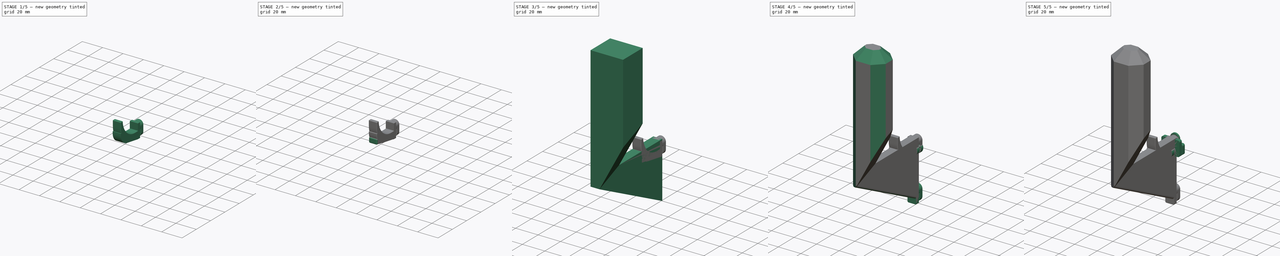
[diagram: build sequence overview — one tinted view per stage of 5, left to right]
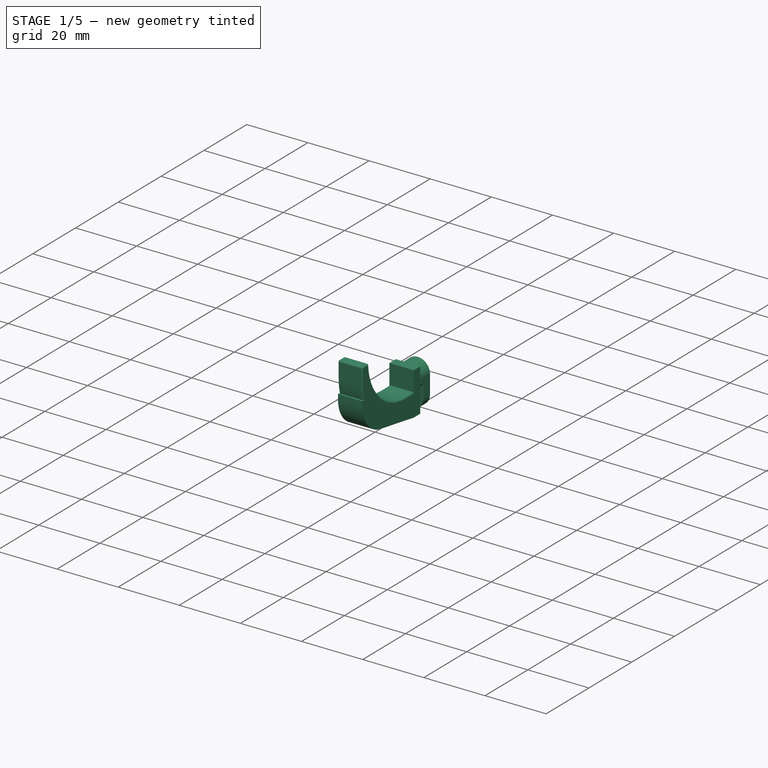
[diagram: stage 1 of 5 — iso view after this stage's code; geometry added in this stage tinted green]
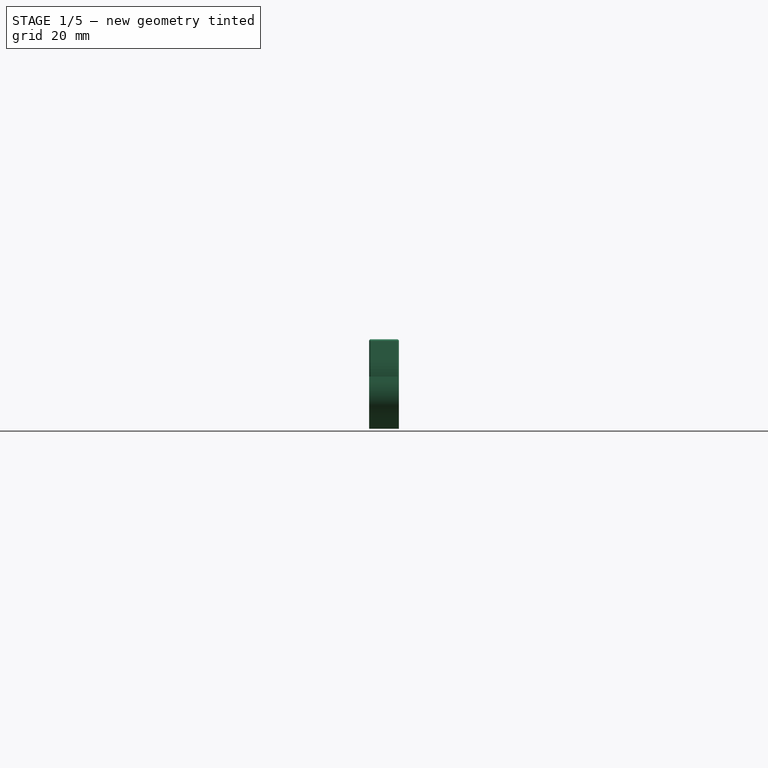
[diagram: stage 1 of 5 — front view after this stage's code; geometry added in this stage tinted green]
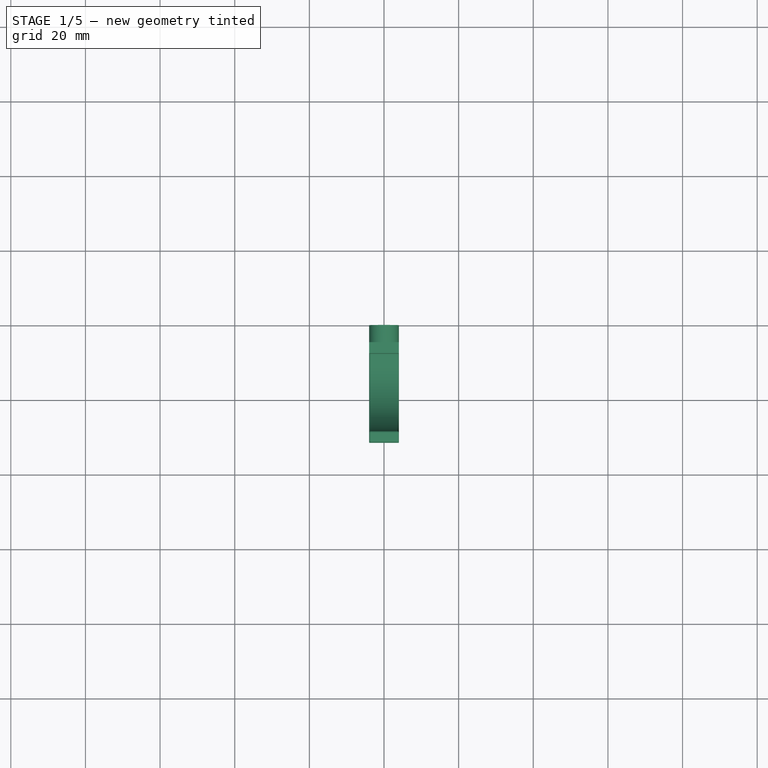
[diagram: stage 1 of 5 — top view after this stage's code; geometry added in this stage tinted green]
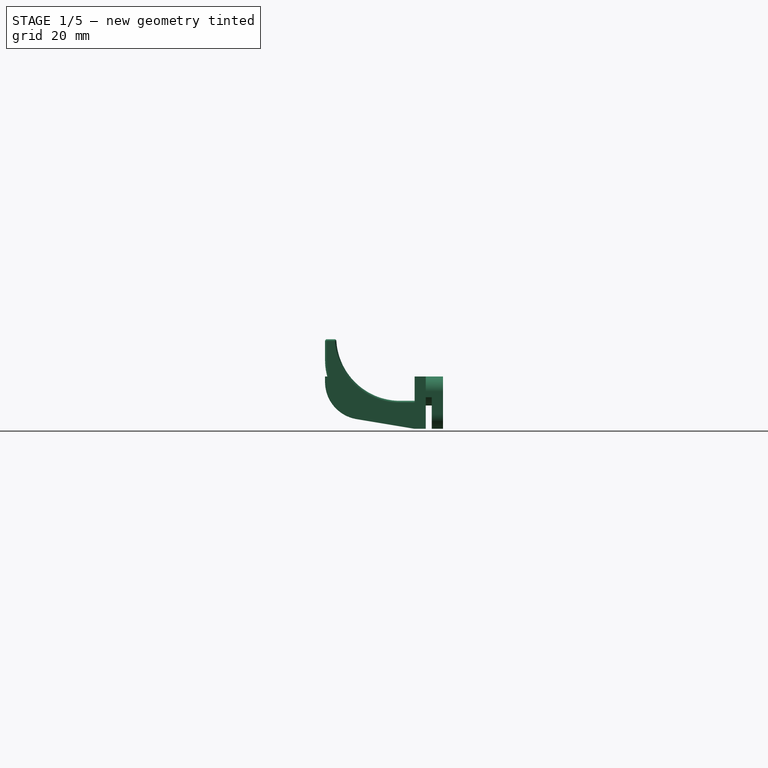
[diagram: stage 1 of 5 — right view after this stage's code; geometry added in this stage tinted green]
FCSTD DOCUMENT  (FreeCAD 1.0R39109 (Git))
Label: vSlotHook
License: All rights reserved
LicenseURL: https://en.wikipedia.org/wiki/All_rights_reserved
objects: PartDesign::Pad×42, Sketcher::SketchObject×15, PartDesign::Fillet×12, PartDesign::Body×10, PartDesign::Chamfer×2, PartDesign::SubtractiveBox×1, Part::MultiFuse×1
note: 212 computed .brp shape members not serialized (recipe doc carries the construction recipe); baked Part::Feature solids carry a one-line shape summary decoded from their .brp

FEATURE [PartDesign::Body] Body007  label="iPegHookBig"
  AllowCompound = false
  Group = -> [Sketch009,Pad037,Pad038,Pad039,Sketch010,Pad040,Fillet005]
  Origin = -> Origin007
  Tip = -> Fillet005
FEATURE [Sketcher::SketchObject] Sketch011
  ArcFitTolerance = 1e-06
  AttachmentSupport = -> [XZ_Plane008]
  FullyConstrained = true
  MakeInternals = false
  MapMode = 5
  Placement = pos=(0,0,0) rot=(1,0,0;1.5708rad)
  sketch-geometry (16):
    g0: ArcOfCircle CenterX=0 CenterY=0 CenterZ=0 NormalX=0 NormalY=0 NormalZ=1 AngleXU=0 Radius=4 StartAngle=3.14159 EndAngle=6.28319
    g1: LineSegment [constr] StartX=-4 StartY=-9e-16 StartZ=0 EndX=-4 EndY=6 EndZ=0
    g2: LineSegment [constr] StartX=4 StartY=-9e-16 StartZ=0 EndX=4 EndY=6 EndZ=0
    g3: ArcOfCircle CenterX=-1e-16 CenterY=6 CenterZ=0 NormalX=0 NormalY=0 NormalZ=1 AngleXU=0 Radius=4 StartAngle=7.66234e-09 EndAngle=3.14159
    g4: LineSegment [constr] StartX=0 StartY=10 StartZ=0 EndX=0 EndY=-4 EndZ=0
    g5: ArcOfCircle CenterX=0 CenterY=7 CenterZ=0 NormalX=0 NormalY=0 NormalZ=1 AngleXU=0 Radius=4.75 StartAngle=3.71121 EndAngle=5.71356
    g6: LineSegment StartX=-4 StartY=10 StartZ=0 EndX=-4 EndY=-4 EndZ=0
    g7: LineSegment StartX=-4 StartY=-4 StartZ=0 EndX=4 EndY=-4 EndZ=0
    g8: LineSegment StartX=4 StartY=-4 StartZ=0 EndX=4 EndY=10 EndZ=0
    g9: LineSegment StartX=4 StartY=10 StartZ=0 EndX=-4 EndY=10 EndZ=0
    g10: LineSegment [constr] StartX=-1e-16 StartY=6 StartZ=0 EndX=4 EndY=6 EndZ=0
    g11: LineSegment [constr] StartX=-1e-16 StartY=6 StartZ=0 EndX=-4 EndY=6 EndZ=0
    g12: LineSegment StartX=-4 StartY=6 StartZ=0 EndX=-4 EndY=4.43826 EndZ=0
    g13: LineSegment StartX=-4 StartY=4.43826 StartZ=0 EndX=-4 EndY=-9e-16 EndZ=0
    g14: LineSegment StartX=4 StartY=6 StartZ=0 EndX=4 EndY=4.43826 EndZ=0
    g15: LineSegment StartX=4 StartY=4.43826 StartZ=0 EndX=4 EndY=-9e-16 EndZ=0
  constraints (45):
    c: Diameter(g0) = 8
    c: Coincident(g0,g-1)
    c: Vertical(g1)
    c: Vertical(g2)
    c: Coincident(g3,g1)
    c: Coincident(g3,g2)
    c: Equal(g3,g0)
    c: Tangent(g0,g2) = -1.5708
    c: Tangent(g0,g1) = 1.5708
    c: PointOnObject(g4,g3)
    c: PointOnObject(g4,g0)
    c: Vertical(g4)
    c: PointOnObject(g4,g-2)
    c: Equal(g1,g2)
    c: DistanceY(g4,g4) = 14
    c: Diameter(g5) = 9.5
    c: PointOnObject(g5,g4)
    c: Distance(g5,g0) = 7
    c: PointOnObject(g5,g1)
    c: Coincident(g6,g7)
    c: Coincident(g7,g8)
    c: Coincident(g8,g9)
    c: Coincident(g9,g6)
    c: Vertical(g6)
    c: Vertical(g8)
    c: Horizontal(g7)
    c: Horizontal(g9)
    c: PointOnObject(g4,g9)
    c: PointOnObject(g4,g7)
    c: DistanceX(g9,g9) = 8
    c: Coincident(g10,g3)
    c: PointOnObject(g10,g8)
    c: Horizontal(g10)
    c: Coincident(g11,g3)
    c: PointOnObject(g11,g6)
    c: Horizontal(g11)
    c: Equal(g11,g10)
    c: Coincident(g12,g1)
    c: Coincident(g12,g5)
    c: Coincident(g13,g5)
    c: Coincident(g13,g0)
    c: Coincident(g14,g2)
    c: Coincident(g14,g5)
    c: Coincident(g15,g5)
    c: Tangent(g15,g0) = 1.5708
FEATURE [PartDesign::Pad] Pad041  label="pegBtm005"
  Direction = (0,-1,2e-16)
  Length = 3
  Length2 = 10
  Placement = pos=(0,0,0) rot=(1,0,0;1.5708rad)
  Profile = -> Sketch011 [Edge5,Edge6,Edge1,Edge2,Edge3,Edge4]
  ReferenceAxis = -> Sketch011 [N_Axis]
  Refine = true
  Suppressed = false
  Type = 0
FEATURE [PartDesign::Pad] Pad042  label="pegWaist005"
  BaseFeature = -> Pad041
  Direction = (0,-1,2e-16)
  Length = 4.6
  Length2 = 10
  Placement = pos=(0,0,0) rot=(1,0,0;1.5708rad)
  Profile = -> Sketch011 [Edge2,Edge3,Edge7,Edge1]
  ReferenceAxis = -> Sketch011 [N_Axis]
  Refine = true
  Suppressed = false
  Type = 0
  expr: Length = <<pegBtm005>>.Length + 1.6 mm
FEATURE [PartDesign::Pad] Pad043
  BaseFeature = -> Pad042
  Direction = (0,-1,2e-16)
  Length = 7.6
  Length2 = -4.6
  Placement = pos=(0,0,0) rot=(1,0,0;1.5708rad)
  Profile = -> Sketch011 [Edge11,Edge10,Edge9,Edge8]
  ReferenceAxis = -> Sketch011 [N_Axis]
  Refine = true
  Suppressed = false
  Type = 4
  expr: Length = -Length2 + 3 mm
  expr: Length2 = -<<pegWaist005>>.Length
FEATURE [Sketcher::SketchObject] Sketch012
  ArcFitTolerance = 1e-06
  AttachmentSupport = -> [YZ_Plane008]
  FullyConstrained = true
  MakeInternals = false
  MapMode = 5
  Placement = pos=(0,0,0) rot=(0.57735,0.57735,0.57735;2.0944rad)
  sketch-geometry (6):
    g0: LineSegment StartX=-7.6 StartY=-4 StartZ=0 EndX=-31.6 EndY=0 EndZ=0
    g1: LineSegment StartX=-31.6 StartY=0 StartZ=0 EndX=-31.6 EndY=10 EndZ=0
    g2: LineSegment StartX=-31.6 StartY=10 StartZ=0 EndX=-29.6 EndY=10 EndZ=0
    g3: LineSegment StartX=-29.6 StartY=10 StartZ=0 EndX=-27.6 EndY=2.5 EndZ=0
    g4: LineSegment StartX=-27.6 StartY=2.5 StartZ=0 EndX=-7.6 EndY=2.5 EndZ=0
    g5: LineSegment StartX=-7.6 StartY=2.5 StartZ=0 EndX=-7.6 EndY=-4 EndZ=0
  constraints (17):
    c: PointOnObject(g0,g-1)
    c: Coincident(g1,g0)
    c: Vertical(g1)
    c: Horizontal(g2)
    c: Coincident(g2,g1)
    c: Coincident(g2,g3)
    c: Coincident(g4,g3)
    c: Horizontal(g4)
    c: DistanceY(g-3,g4) = 6.5
    c: Distance(g2,g2) = 2
    c: DistanceY(g1,g1) = 10
    c: DistanceX(g4,g4) = 20
    c: Coincident(g5,g4)
    c: Coincident(g5,g0)
    c: Vertical(g5)
    c: Distance(g0,g5) = 24
    c: Coincident(g0,g-3)
FEATURE [PartDesign::Pad] Pad044
  BaseFeature = -> Pad043
  Direction = (1,0,0)
  Length = 8
  Length2 = 10
  Midplane = true
  Placement = pos=(0,0,0) rot=(1,0,0;1.5708rad)
  Profile = -> Sketch012
  ReferenceAxis = -> Sketch012 [N_Axis]
  Refine = true
  Suppressed = false
  Type = 0
FEATURE [PartDesign::Fillet] Fillet006
  Base = -> Pad044 [Edge34,Edge37]
  BaseFeature = -> Pad044
  Placement = pos=(0,0,0) rot=(1,0,0;1.5708rad)
  Radius = 10.1
  Refine = true
  SupportTransform = false
  Suppressed = false
  UseAllEdges = false
FEATURE [PartDesign::Body] Body008  label="iPegHookBig001"
  AllowCompound = false
  Group = -> [Sketch011,Pad041,Pad042,Pad043,Sketch012,Pad044,Fillet006,Fillet007,Fillet008]
  Origin = -> Origin008
  Tip = -> Fillet008
FEATURE [Sketcher::SketchObject] Sketch013
  ArcFitTolerance = 1e-06
  AttachmentSupport = -> [XZ_Plane009]
  FullyConstrained = true
  MakeInternals = false
  MapMode = 5
  Placement = pos=(0,0,0) rot=(1,0,0;1.5708rad)
  sketch-geometry (16):
    g0: ArcOfCircle CenterX=0 CenterY=0 CenterZ=0 NormalX=0 NormalY=0 NormalZ=1 AngleXU=0 Radius=4 StartAngle=3.14159 EndAngle=6.28319
    g1: LineSegment [constr] StartX=-4 StartY=-9e-16 StartZ=0 EndX=-4 EndY=6 EndZ=0
    g2: LineSegment [constr] StartX=4 StartY=-9e-16 StartZ=0 EndX=4 EndY=6 EndZ=0
    g3: ArcOfCircle CenterX=-1e-16 CenterY=6 CenterZ=0 NormalX=0 NormalY=0 NormalZ=1 AngleXU=0 Radius=4 StartAngle=7.66234e-09 EndAngle=3.14159
    g4: LineSegment [constr] StartX=0 StartY=10 StartZ=0 EndX=0 EndY=-4 EndZ=0
    g5: ArcOfCircle CenterX=0 CenterY=7 CenterZ=0 NormalX=0 NormalY=0 NormalZ=1 AngleXU=0 Radius=4.75 StartAngle=3.71121 EndAngle=5.71356
    g6: LineSegment StartX=-4 StartY=10 StartZ=0 EndX=-4 EndY=-4 EndZ=0
    g7: LineSegment StartX=-4 StartY=-4 StartZ=0 EndX=4 EndY=-4 EndZ=0
    g8: LineSegment StartX=4 StartY=-4 StartZ=0 EndX=4 EndY=10 EndZ=0
    g9: LineSegment StartX=4 StartY=10 StartZ=0 EndX=-4 EndY=10 EndZ=0
    g10: LineSegment [constr] StartX=-1e-16 StartY=6 StartZ=0 EndX=4 EndY=6 EndZ=0
    g11: LineSegment [constr] StartX=-1e-16 StartY=6 StartZ=0 EndX=-4 EndY=6 EndZ=0
    g12: LineSegment StartX=-4 StartY=6 StartZ=0 EndX=-4 EndY=4.43826 EndZ=0
    g13: LineSegment StartX=-4 StartY=4.43826 StartZ=0 EndX=-4 EndY=-9e-16 EndZ=0
    g14: LineSegment StartX=4 StartY=6 StartZ=0 EndX=4 EndY=4.43826 EndZ=0
    g15: LineSegment StartX=4 StartY=4.43826 StartZ=0 EndX=4 EndY=-9e-16 EndZ=0
  constraints (45):
    c: Diameter(g0) = 8
    c: Coincident(g0,g-1)
    c: Vertical(g1)
    c: Vertical(g2)
    c: Coincident(g3,g1)
    c: Coincident(g3,g2)
    c: Equal(g3,g0)
    c: Tangent(g0,g2) = -1.5708
    c: Tangent(g0,g1) = 1.5708
    c: PointOnObject(g4,g3)
    c: PointOnObject(g4,g0)
    c: Vertical(g4)
    c: PointOnObject(g4,g-2)
    c: Equal(g1,g2)
    c: DistanceY(g4,g4) = 14
    c: Diameter(g5) = 9.5
    c: PointOnObject(g5,g4)
    c: Distance(g5,g0) = 7
    c: PointOnObject(g5,g1)
    c: Coincident(g6,g7)
    c: Coincident(g7,g8)
    c: Coincident(g8,g9)
    c: Coincident(g9,g6)
    c: Vertical(g6)
    c: Vertical(g8)
    c: Horizontal(g7)
    c: Horizontal(g9)
    c: PointOnObject(g4,g9)
    c: PointOnObject(g4,g7)
    c: DistanceX(g9,g9) = 8
    c: Coincident(g10,g3)
    c: PointOnObject(g10,g8)
    c: Horizontal(g10)
    c: Coincident(g11,g3)
    c: PointOnObject(g11,g6)
    c: Horizontal(g11)
    c: Equal(g11,g10)
    c: Coincident(g12,g1)
    c: Coincident(g12,g5)
    c: Coincident(g13,g5)
    c: Coincident(g13,g0)
    c: Coincident(g14,g2)
    c: Coincident(g14,g5)
    c: Coincident(g15,g5)
    c: Tangent(g15,g0) = 1.5708
FEATURE [PartDesign::Pad] Pad045  label="pegBtm006"
  Direction = (0,-1,2e-16)
  Length = 3
  Length2 = 10
  Placement = pos=(0,0,0) rot=(1,0,0;1.5708rad)
  Profile = -> Sketch013 [Edge5,Edge6,Edge1,Edge2,Edge3,Edge4]
  ReferenceAxis = -> Sketch013 [N_Axis]
  Refine = true
  Suppressed = false
  Type = 0
FEATURE [PartDesign::Pad] Pad046  label="pegWaist006"
  BaseFeature = -> Pad045
  Direction = (0,-1,2e-16)
  Length = 4.6
  Length2 = 10
  Placement = pos=(0,0,0) rot=(1,0,0;1.5708rad)
  Profile = -> Sketch013 [Edge2,Edge3,Edge7,Edge1]
  ReferenceAxis = -> Sketch013 [N_Axis]
  Refine = true
  Suppressed = false
  Type = 0
  expr: Length = <<pegBtm006>>.Length + 1.6 mm
FEATURE [PartDesign::Pad] Pad047
  BaseFeature = -> Pad046
  Direction = (0,-1,2e-16)
  Length = 7.6
  Length2 = -4.6
  Placement = pos=(0,0,0) rot=(1,0,0;1.5708rad)
  Profile = -> Sketch013 [Edge11,Edge10,Edge9,Edge8]
  ReferenceAxis = -> Sketch013 [N_Axis]
  Refine = true
  Suppressed = false
  Type = 4
  expr: Length = -Length2 + 3 mm
  expr: Length2 = -<<pegWaist006>>.Length
FEATURE [Sketcher::SketchObject] Sketch014
  ArcFitTolerance = 1e-06
  AttachmentSupport = -> [YZ_Plane009]
  FullyConstrained = true
  MakeInternals = false
  MapMode = 5
  Placement = pos=(0,0,0) rot=(0.57735,0.57735,0.57735;2.0944rad)
  sketch-geometry (6):
    g0: LineSegment StartX=-7.6 StartY=-4 StartZ=0 EndX=-31.6 EndY=4e-16 EndZ=0
    g1: LineSegment StartX=-31.6 StartY=0 StartZ=0 EndX=-31.6 EndY=20 EndZ=0
    g2: LineSegment StartX=-31.6 StartY=20 StartZ=0 EndX=-28.6 EndY=20 EndZ=0
    g3: LineSegment StartX=-28.6 StartY=20 StartZ=0 EndX=-27.6 EndY=3.5 EndZ=0
    g4: LineSegment StartX=-27.6 StartY=3.5 StartZ=0 EndX=-7.6 EndY=3.5 EndZ=0
    g5: LineSegment StartX=-7.6 StartY=3.5 StartZ=0 EndX=-7.6 EndY=-4 EndZ=0
  constraints (17):
    c: PointOnObject(g0,g-1)
    c: Coincident(g1,g0)
    c: Vertical(g1)
    c: Horizontal(g2)
    c: Coincident(g2,g1)
    c: Coincident(g2,g3)
    c: Coincident(g4,g3)
    c: Horizontal(g4)
    c: DistanceY(g-3,g4) = 7.5
    c: Distance(g2,g2) = 3
    c: DistanceY(g1,g1) = 20
    c: DistanceX(g4,g4) = 20
    c: Coincident(g5,g4)
    c: Coincident(g5,g0)
    c: Vertical(g5)
    c: Distance(g0,g5) = 24
    c: Coincident(g0,g-3)
FEATURE [PartDesign::Pad] Pad048
  BaseFeature = -> Pad047
  Direction = (1,0,0)
  Length = 8
  Length2 = 10
  Midplane = true
  Placement = pos=(0,0,0) rot=(1,0,0;1.5708rad)
  Profile = -> Sketch014
  ReferenceAxis = -> Sketch014 [N_Axis]
  Refine = true
  Suppressed = false
  Type = 0
FEATURE [PartDesign::Fillet] Fillet009
  Base = -> Pad048 [Edge34,Edge37]
  BaseFeature = -> Pad048
  Placement = pos=(0,0,0) rot=(1,0,0;1.5708rad)
  Radius = 17.1
  Refine = true
  SupportTransform = false
  Suppressed = false
  UseAllEdges = false
FEATURE [PartDesign::Fillet] Fillet010
  Base = -> Fillet009 [Edge12,Edge8,Edge25,Edge29,Edge45,Edge10,Edge43,Edge27]
  BaseFeature = -> Fillet009
  Placement = pos=(0,0,0) rot=(1,0,0;1.5708rad)
  Radius = 0.5
  Refine = true
  SupportTransform = false
  Suppressed = false
  UseAllEdges = false
FEATURE [PartDesign::Fillet] Fillet011
  Base = -> Fillet010 [Edge69,Edge37,Edge49,Edge74]
  BaseFeature = -> Fillet010
  Placement = pos=(0,0,0) rot=(1,0,0;1.5708rad)
  Radius = 1
  Refine = true
  SupportTransform = false
  Suppressed = false
  UseAllEdges = false
FEATURE [PartDesign::Body] Body009  label="iPegHookBig002"
  AllowCompound = false
  Group = -> [Sketch013,Pad045,Pad046,Pad047,Sketch014,Pad048,Fillet009,Fillet010,Fillet011]
  Origin = -> Origin009
  Tip = -> Fillet011
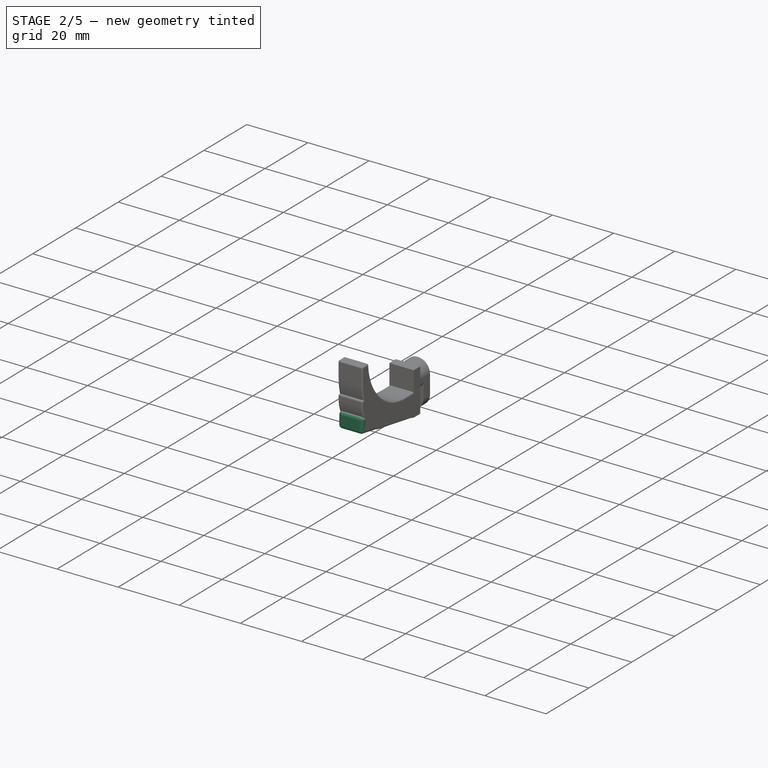
[diagram: stage 2 of 5 — iso view after this stage's code; geometry added in this stage tinted green]
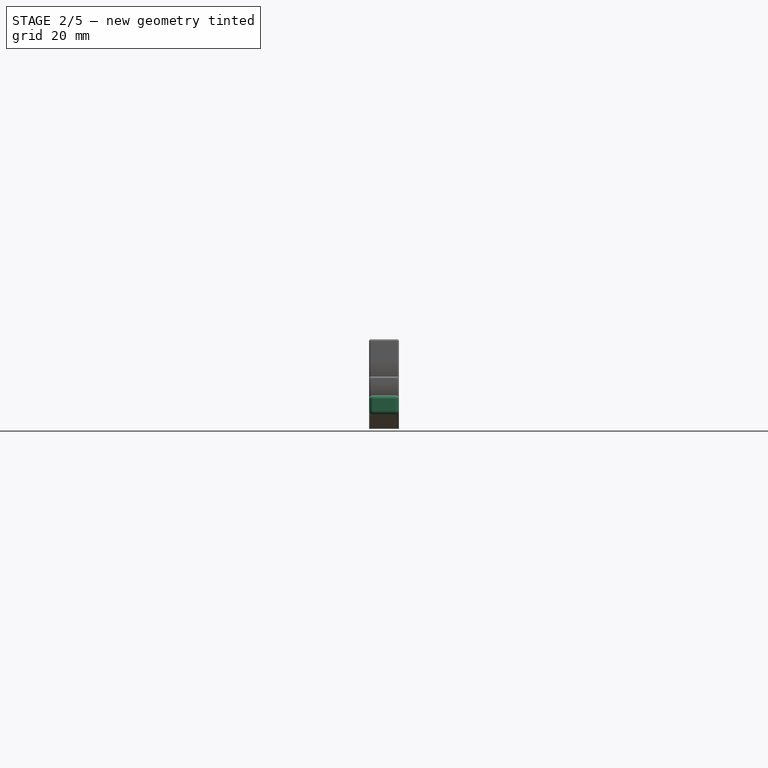
[diagram: stage 2 of 5 — front view after this stage's code; geometry added in this stage tinted green]
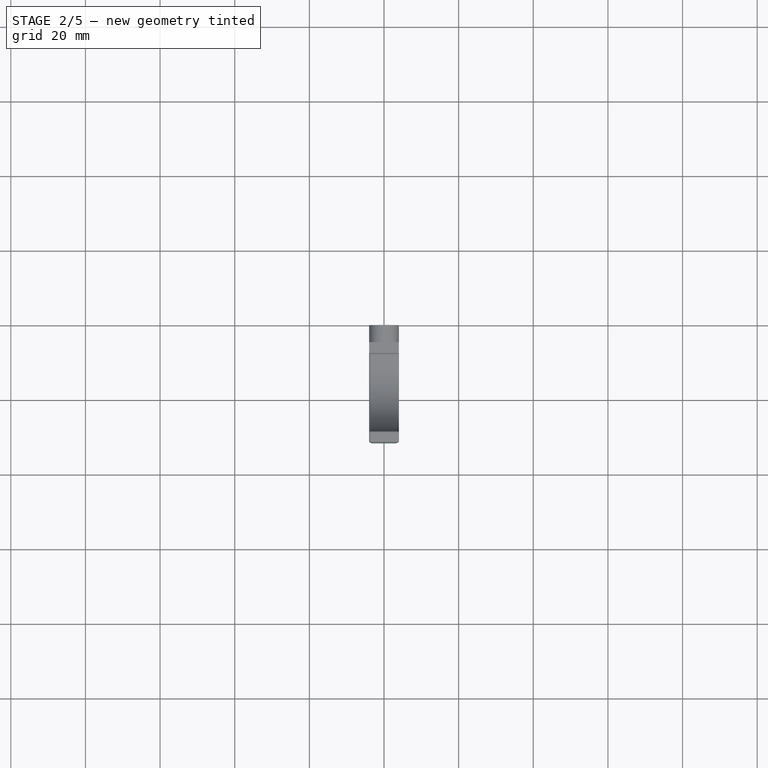
[diagram: stage 2 of 5 — top view after this stage's code; geometry added in this stage tinted green]
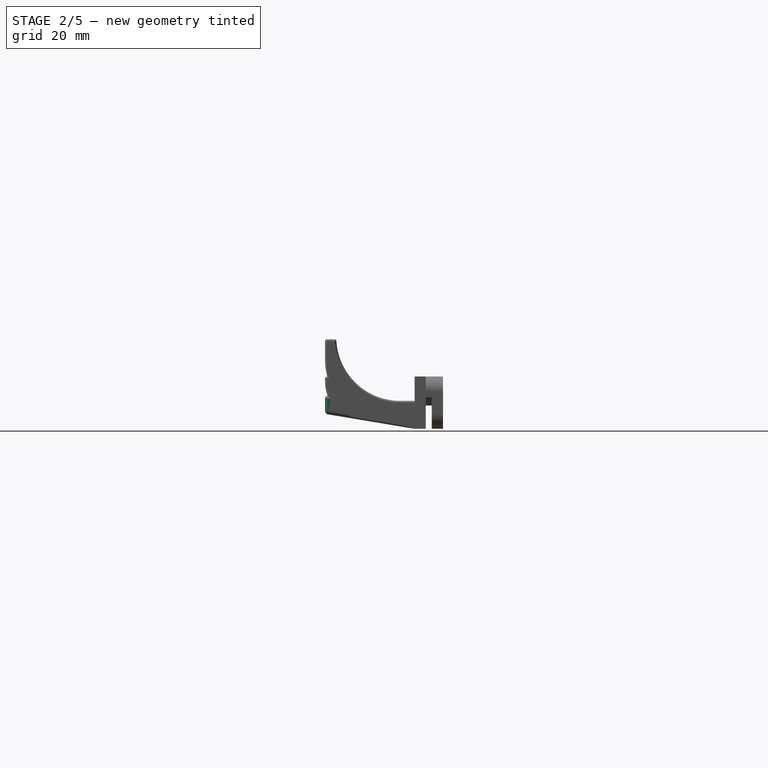
[diagram: stage 2 of 5 — right view after this stage's code; geometry added in this stage tinted green]
FEATURE [Sketcher::SketchObject] Sketch007
  ArcFitTolerance = 1e-06
  AttachmentSupport = -> [XZ_Plane006]
  FullyConstrained = true
  MakeInternals = false
  MapMode = 5
  Placement = pos=(0,0,0) rot=(1,0,0;1.5708rad)
  sketch-geometry (16):
    g0: ArcOfCircle CenterX=0 CenterY=0 CenterZ=0 NormalX=0 NormalY=0 NormalZ=1 AngleXU=0 Radius=4 StartAngle=3.14159 EndAngle=6.28319
    g1: LineSegment [constr] StartX=-4 StartY=-1.3e-15 StartZ=0 EndX=-4 EndY=6 EndZ=0
    g2: LineSegment [constr] StartX=4 StartY=-1e-15 StartZ=0 EndX=4 EndY=6 EndZ=0
    g3: ArcOfCircle CenterX=-1e-16 CenterY=6 CenterZ=0 NormalX=0 NormalY=0 NormalZ=1 AngleXU=0 Radius=4 StartAngle=7.66234e-09 EndAngle=3.14159
    g4: LineSegment [constr] StartX=0 StartY=10 StartZ=0 EndX=0 EndY=-4 EndZ=0
    g5: ArcOfCircle CenterX=0 CenterY=7 CenterZ=0 NormalX=0 NormalY=0 NormalZ=1 AngleXU=0 Radius=4.75 StartAngle=3.71121 EndAngle=5.71356
    g6: LineSegment StartX=-4 StartY=10 StartZ=0 EndX=-4 EndY=-4 EndZ=0
    g7: LineSegment StartX=-4 StartY=-4 StartZ=0 EndX=4 EndY=-4 EndZ=0
    g8: LineSegment StartX=4 StartY=-4 StartZ=0 EndX=4 EndY=10 EndZ=0
    g9: LineSegment StartX=4 StartY=10 StartZ=0 EndX=-4 EndY=10 EndZ=0
    g10: LineSegment [constr] StartX=-1e-16 StartY=6 StartZ=0 EndX=4 EndY=6 EndZ=0
    g11: LineSegment [constr] StartX=-1e-16 StartY=6 StartZ=0 EndX=-4 EndY=6 EndZ=0
    g12: LineSegment StartX=-4 StartY=6 StartZ=0 EndX=-4 EndY=4.43826 EndZ=0
    g13: LineSegment StartX=-4 StartY=4.43826 StartZ=0 EndX=-4 EndY=-9e-16 EndZ=0
    g14: LineSegment StartX=4 StartY=6 StartZ=0 EndX=4 EndY=4.43826 EndZ=0
    g15: LineSegment StartX=4 StartY=4.43826 StartZ=0 EndX=4 EndY=-9e-16 EndZ=0
  constraints (45):
    c: Diameter(g0) = 8
    c: Coincident(g0,g-1)
    c: Vertical(g1)
    c: Vertical(g2)
    c: Coincident(g3,g1)
    c: Coincident(g3,g2)
    c: Equal(g3,g0)
    c: Tangent(g0,g2) = -1.5708
    c: Tangent(g0,g1) = 1.5708
    c: PointOnObject(g4,g3)
    c: PointOnObject(g4,g0)
    c: Vertical(g4)
    c: PointOnObject(g4,g-2)
    c: Equal(g1,g2)
    c: DistanceY(g4,g4) = 14
    c: Diameter(g5) = 9.5
    c: PointOnObject(g5,g4)
    c: Distance(g5,g0) = 7
    c: PointOnObject(g5,g1)
    c: Coincident(g6,g7)
    c: Coincident(g7,g8)
    c: Coincident(g8,g9)
    c: Coincident(g9,g6)
    c: Vertical(g6)
    c: Vertical(g8)
    c: Horizontal(g7)
    c: Horizontal(g9)
    c: PointOnObject(g4,g9)
    c: PointOnObject(g4,g7)
    c: DistanceX(g9,g9) = 8
    c: Coincident(g10,g3)
    c: PointOnObject(g10,g8)
    c: Horizontal(g10)
    c: Coincident(g11,g3)
    c: PointOnObject(g11,g6)
    c: Horizontal(g11)
    c: Equal(g11,g10)
    c: Coincident(g12,g1)
    c: Coincident(g12,g5)
    c: Coincident(g13,g5)
    c: Coincident(g13,g0)
    c: Coincident(g14,g2)
    c: Coincident(g14,g5)
    c: Coincident(g15,g5)
    c: Tangent(g15,g0) = 1.5708
FEATURE [PartDesign::Pad] Pad033  label="pegBtm003"
  Direction = (0,-1,2e-16)
  Length = 3
  Length2 = 10
  Placement = pos=(0,0,0) rot=(1,0,0;1.5708rad)
  Profile = -> Sketch007 [Edge5,Edge6,Edge1,Edge2,Edge3,Edge4]
  ReferenceAxis = -> Sketch007 [N_Axis]
  Refine = true
  Suppressed = false
  Type = 0
FEATURE [PartDesign::Pad] Pad034  label="pegWaist003"
  BaseFeature = -> Pad033
  Direction = (0,-1,2e-16)
  Length = 4.6
  Length2 = 10
  Placement = pos=(0,0,0) rot=(1,0,0;1.5708rad)
  Profile = -> Sketch007 [Edge2,Edge3,Edge7,Edge1]
  ReferenceAxis = -> Sketch007 [N_Axis]
  Refine = true
  Suppressed = false
  Type = 0
  expr: Length = <<pegBtm003>>.Length + 1.6 mm
FEATURE [PartDesign::Pad] Pad035
  BaseFeature = -> Pad034
  Direction = (0,-1,2e-16)
  Length = 7.6
  Length2 = -4.6
  Placement = pos=(0,0,0) rot=(1,0,0;1.5708rad)
  Profile = -> Sketch007 [Edge11,Edge10,Edge9,Edge8]
  ReferenceAxis = -> Sketch007 [N_Axis]
  Refine = true
  Suppressed = false
  Type = 4
  expr: Length = -Length2 + 3 mm
  expr: Length2 = -<<pegWaist003>>.Length
FEATURE [Sketcher::SketchObject] Sketch008
  ArcFitTolerance = 1e-06
  AttachmentSupport = -> [YZ_Plane006]
  FullyConstrained = true
  MakeInternals = false
  MapMode = 5
  Placement = pos=(0,0,0) rot=(0.57735,0.57735,0.57735;2.0944rad)
  sketch-geometry (6):
    g0: LineSegment StartX=-7.6 StartY=-4 StartZ=0 EndX=-21.6 EndY=0 EndZ=0
    g1: LineSegment StartX=-21.6 StartY=0 StartZ=0 EndX=-21.6 EndY=5 EndZ=0
    g2: LineSegment StartX=-21.6 StartY=5 StartZ=0 EndX=-19.6 EndY=5 EndZ=0
    g3: LineSegment StartX=-19.6 StartY=5 StartZ=0 EndX=-17.6 EndY=2.5 EndZ=0
    g4: LineSegment StartX=-17.6 StartY=2.5 StartZ=0 EndX=-7.6 EndY=2.5 EndZ=0
    g5: LineSegment StartX=-7.6 StartY=2.5 StartZ=0 EndX=-7.6 EndY=-4 EndZ=0
  constraints (17):
    c: PointOnObject(g0,g-1)
    c: Coincident(g1,g0)
    c: Vertical(g1)
    c: Horizontal(g2)
    c: Coincident(g2,g1)
    c: Coincident(g2,g3)
    c: Coincident(g4,g3)
    c: Horizontal(g4)
    c: DistanceY(g-3,g4) = 6.5
    c: Distance(g2,g2) = 2
    c: DistanceY(g1,g1) = 5
    c: DistanceX(g4,g4) = 10
    c: Coincident(g5,g4)
    c: Coincident(g5,g0)
    c: Vertical(g5)
    c: Distance(g0,g5) = 14
    c: Coincident(g0,g-3)
FEATURE [PartDesign::Pad] Pad036
  BaseFeature = -> Pad035
  Direction = (1,0,0)
  Length = 8
  Length2 = 10
  Midplane = true
  Placement = pos=(0,0,0) rot=(1,0,0;1.5708rad)
  Profile = -> Sketch008
  ReferenceAxis = -> Sketch008 [N_Axis]
  Refine = true
  Suppressed = false
  Type = 0
FEATURE [PartDesign::Body] Body006  label="iPegHook"
  AllowCompound = false
  Group = -> [Sketch007,Pad033,Pad034,Pad035,Sketch008,Pad036,Fillet004]
  Origin = -> Origin006
  Tip = -> Fillet004
FEATURE [Sketcher::SketchObject] Sketch009
  ArcFitTolerance = 1e-06
  AttachmentSupport = -> [XZ_Plane007]
  FullyConstrained = true
  MakeInternals = false
  MapMode = 5
  Placement = pos=(0,0,0) rot=(1,0,0;1.5708rad)
  sketch-geometry (16):
    g0: ArcOfCircle CenterX=0 CenterY=0 CenterZ=0 NormalX=0 NormalY=0 NormalZ=1 AngleXU=0 Radius=4 StartAngle=3.14159 EndAngle=6.28319
    g1: LineSegment [constr] StartX=-4 StartY=-9e-16 StartZ=0 EndX=-4 EndY=6 EndZ=0
    g2: LineSegment [constr] StartX=4 StartY=-9e-16 StartZ=0 EndX=4 EndY=6 EndZ=0
    g3: ArcOfCircle CenterX=-1e-16 CenterY=6 CenterZ=0 NormalX=0 NormalY=0 NormalZ=1 AngleXU=0 Radius=4 StartAngle=7.66234e-09 EndAngle=3.14159
    g4: LineSegment [constr] StartX=0 StartY=10 StartZ=0 EndX=0 EndY=-4 EndZ=0
    g5: ArcOfCircle CenterX=0 CenterY=7 CenterZ=0 NormalX=0 NormalY=0 NormalZ=1 AngleXU=0 Radius=4.75 StartAngle=3.71121 EndAngle=5.71356
    g6: LineSegment StartX=-4 StartY=10 StartZ=0 EndX=-4 EndY=-4 EndZ=0
    g7: LineSegment StartX=-4 StartY=-4 StartZ=0 EndX=4 EndY=-4 EndZ=0
    g8: LineSegment StartX=4 StartY=-4 StartZ=0 EndX=4 EndY=10 EndZ=0
    g9: LineSegment StartX=4 StartY=10 StartZ=0 EndX=-4 EndY=10 EndZ=0
    g10: LineSegment [constr] StartX=-1e-16 StartY=6 StartZ=0 EndX=4 EndY=6 EndZ=0
    g11: LineSegment [constr] StartX=-1e-16 StartY=6 StartZ=0 EndX=-4 EndY=6 EndZ=0
    g12: LineSegment StartX=-4 StartY=6 StartZ=0 EndX=-4 EndY=4.43826 EndZ=0
    g13: LineSegment StartX=-4 StartY=4.43826 StartZ=0 EndX=-4 EndY=-9e-16 EndZ=0
    g14: LineSegment StartX=4 StartY=6 StartZ=0 EndX=4 EndY=4.43826 EndZ=0
    g15: LineSegment StartX=4 StartY=4.43826 StartZ=0 EndX=4 EndY=-9e-16 EndZ=0
  constraints (45):
    c: Diameter(g0) = 8
    c: Coincident(g0,g-1)
    c: Vertical(g1)
    c: Vertical(g2)
    c: Coincident(g3,g1)
    c: Coincident(g3,g2)
    c: Equal(g3,g0)
    c: Tangent(g0,g2) = -1.5708
    c: Tangent(g0,g1) = 1.5708
    c: PointOnObject(g4,g3)
    c: PointOnObject(g4,g0)
    c: Vertical(g4)
    c: PointOnObject(g4,g-2)
    c: Equal(g1,g2)
    c: DistanceY(g4,g4) = 14
    c: Diameter(g5) = 9.5
    c: PointOnObject(g5,g4)
    c: Distance(g5,g0) = 7
    c: PointOnObject(g5,g1)
    c: Coincident(g6,g7)
    c: Coincident(g7,g8)
    c: Coincident(g8,g9)
    c: Coincident(g9,g6)
    c: Vertical(g6)
    c: Vertical(g8)
    c: Horizontal(g7)
    c: Horizontal(g9)
    c: PointOnObject(g4,g9)
    c: PointOnObject(g4,g7)
    c: DistanceX(g9,g9) = 8
    c: Coincident(g10,g3)
    c: PointOnObject(g10,g8)
    c: Horizontal(g10)
    c: Coincident(g11,g3)
    c: PointOnObject(g11,g6)
    c: Horizontal(g11)
    c: Equal(g11,g10)
    c: Coincident(g12,g1)
    c: Coincident(g12,g5)
    c: Coincident(g13,g5)
    c: Coincident(g13,g0)
    c: Coincident(g14,g2)
    c: Coincident(g14,g5)
    c: Coincident(g15,g5)
    c: Tangent(g15,g0) = 1.5708
FEATURE [PartDesign::Pad] Pad037  label="pegBtm004"
  Direction = (0,-1,2e-16)
  Length = 3
  Length2 = 10
  Placement = pos=(0,0,0) rot=(1,0,0;1.5708rad)
  Profile = -> Sketch009 [Edge5,Edge6,Edge1,Edge2,Edge3,Edge4]
  ReferenceAxis = -> Sketch009 [N_Axis]
  Refine = true
  Suppressed = false
  Type = 0
FEATURE [PartDesign::Pad] Pad038  label="pegWaist004"
  BaseFeature = -> Pad037
  Direction = (0,-1,2e-16)
  Length = 4.6
  Length2 = 10
  Placement = pos=(0,0,0) rot=(1,0,0;1.5708rad)
  Profile = -> Sketch009 [Edge2,Edge3,Edge7,Edge1]
  ReferenceAxis = -> Sketch009 [N_Axis]
  Refine = true
  Suppressed = false
  Type = 0
  expr: Length = <<pegBtm004>>.Length + 1.6 mm
FEATURE [PartDesign::Pad] Pad039
  BaseFeature = -> Pad038
  Direction = (0,-1,2e-16)
  Length = 7.6
  Length2 = -4.6
  Placement = pos=(0,0,0) rot=(1,0,0;1.5708rad)
  Profile = -> Sketch009 [Edge11,Edge10,Edge9,Edge8]
  ReferenceAxis = -> Sketch009 [N_Axis]
  Refine = true
  Suppressed = false
  Type = 4
  expr: Length = -Length2 + 3 mm
  expr: Length2 = -<<pegWaist004>>.Length
FEATURE [Sketcher::SketchObject] Sketch010
  ArcFitTolerance = 1e-06
  AttachmentSupport = -> [YZ_Plane007]
  FullyConstrained = true
  MakeInternals = false
  MapMode = 5
  Placement = pos=(0,0,0) rot=(0.57735,0.57735,0.57735;2.0944rad)
  sketch-geometry (6):
    g0: LineSegment StartX=-7.6 StartY=-4 StartZ=0 EndX=-31.6 EndY=0 EndZ=0
    g1: LineSegment StartX=-31.6 StartY=0 StartZ=0 EndX=-31.6 EndY=5 EndZ=0
    g2: LineSegment StartX=-31.6 StartY=5 StartZ=0 EndX=-29.6 EndY=5 EndZ=0
    g3: LineSegment StartX=-29.6 StartY=5 StartZ=0 EndX=-27.6 EndY=2.5 EndZ=0
    g4: LineSegment StartX=-27.6 StartY=2.5 StartZ=0 EndX=-7.6 EndY=2.5 EndZ=0
    g5: LineSegment StartX=-7.6 StartY=2.5 StartZ=0 EndX=-7.6 EndY=-4 EndZ=0
  constraints (17):
    c: PointOnObject(g0,g-1)
    c: Coincident(g1,g0)
    c: Vertical(g1)
    c: Horizontal(g2)
    c: Coincident(g2,g1)
    c: Coincident(g2,g3)
    c: Coincident(g4,g3)
    c: Horizontal(g4)
    c: DistanceY(g-3,g4) = 6.5
    c: Distance(g2,g2) = 2
    c: DistanceY(g1,g1) = 5
    c: DistanceX(g4,g4) = 20
    c: Coincident(g5,g4)
    c: Coincident(g5,g0)
    c: Vertical(g5)
    c: Distance(g0,g5) = 24
    c: Coincident(g0,g-3)
FEATURE [PartDesign::Pad] Pad040
  BaseFeature = -> Pad039
  Direction = (1,0,0)
  Length = 8
  Length2 = 10
  Midplane = true
  Placement = pos=(0,0,0) rot=(1,0,0;1.5708rad)
  Profile = -> Sketch010
  ReferenceAxis = -> Sketch010 [N_Axis]
  Refine = true
  Suppressed = false
  Type = 0
FEATURE [PartDesign::Fillet] Fillet005
  Base = -> Pad040 [Edge1,Edge2,Edge26,Edge25,Edge38,Edge35,Edge11,Edge10,Edge12,Edge36,Edge39,Edge42,Edge37,Edge41,Edge40,Edge47,Edge43,Edge45,Edge44,Edge46,Edge34,Edge21,Edge14,Edge20,Edge18]
  BaseFeature = -> Pad040
  Placement = pos=(0,0,0) rot=(1,0,0;1.5708rad)
  Radius = 1
  Refine = true
  SupportTransform = false
  Suppressed = false
  UseAllEdges = false
FEATURE [PartDesign::Fillet] Fillet007
  Base = -> Fillet006 [Edge29,Edge22,Edge14,Edge6,Edge45,Edge43,Edge27,Edge10]
  BaseFeature = -> Fillet006
  Placement = pos=(0,0,0) rot=(1,0,0;1.5708rad)
  Radius = 0.5
  Refine = true
  SupportTransform = false
  Suppressed = false
  UseAllEdges = false
FEATURE [PartDesign::Fillet] Fillet008
  Base = -> Fillet007 [Edge37,Edge49,Edge74,Edge69]
  BaseFeature = -> Fillet007
  Placement = pos=(0,0,0) rot=(1,0,0;1.5708rad)
  Radius = 1
  Refine = true
  SupportTransform = false
  Suppressed = false
  UseAllEdges = false
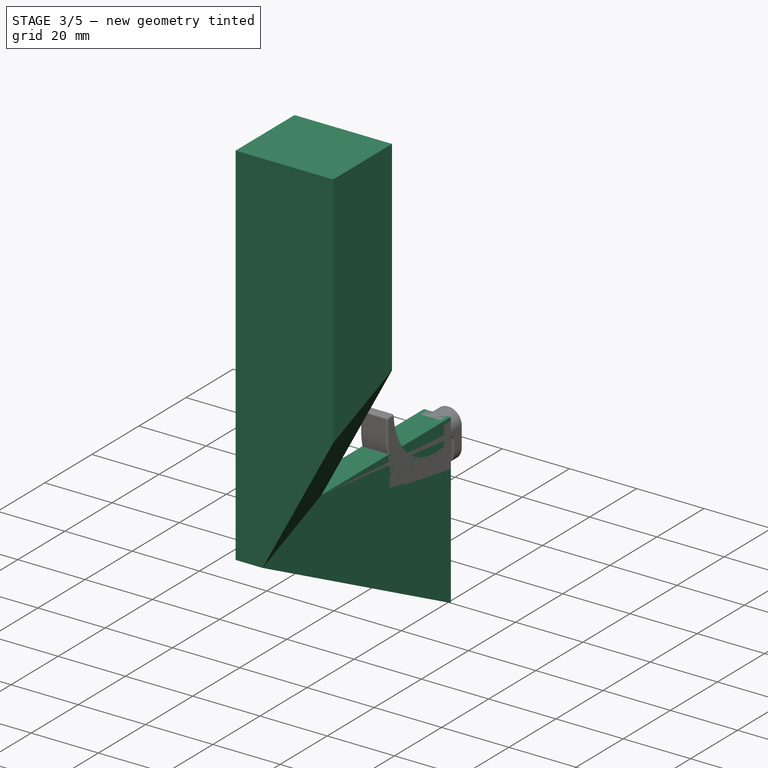
[diagram: stage 3 of 5 — iso view after this stage's code; geometry added in this stage tinted green]
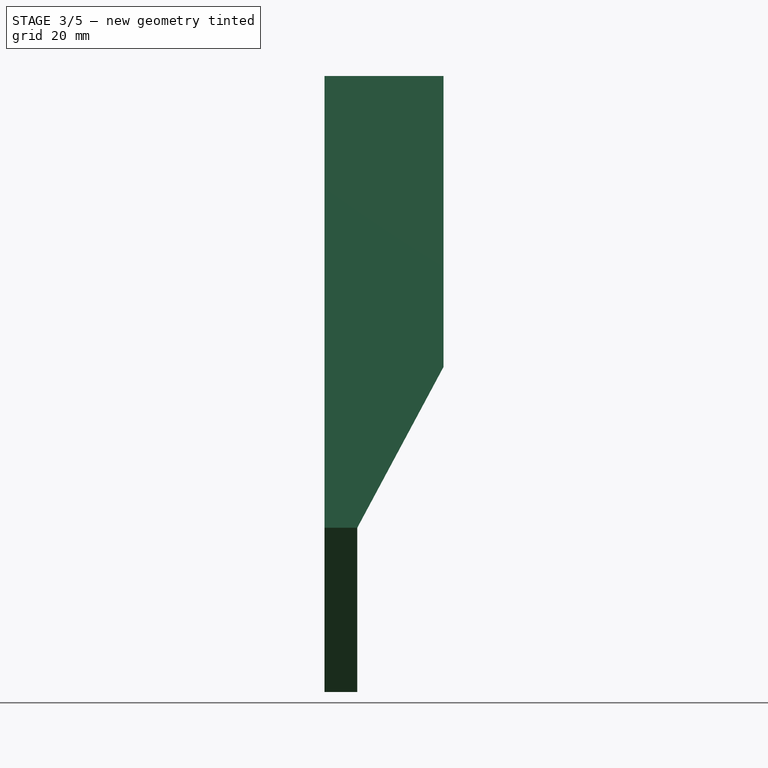
[diagram: stage 3 of 5 — front view after this stage's code; geometry added in this stage tinted green]
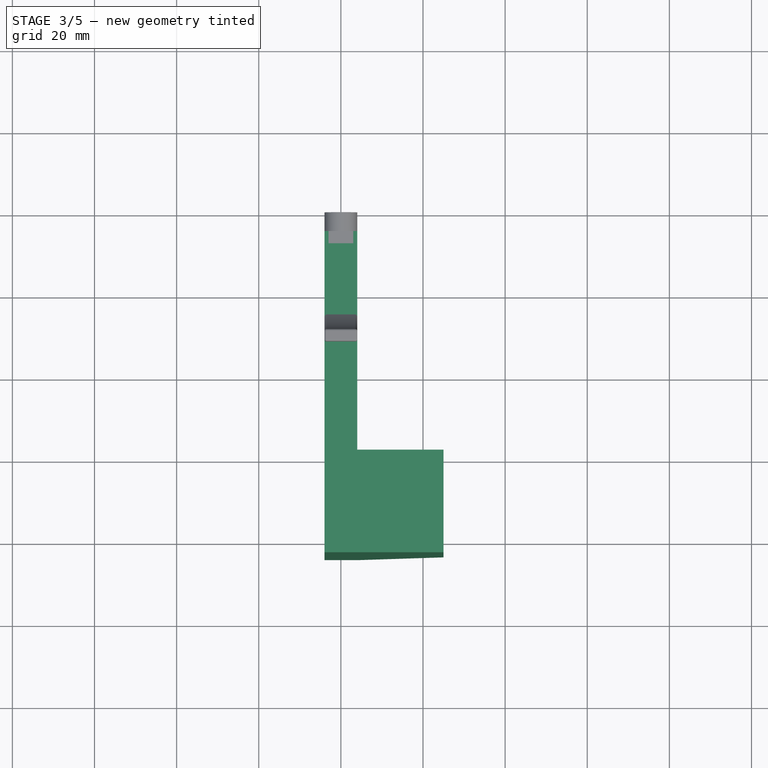
[diagram: stage 3 of 5 — top view after this stage's code; geometry added in this stage tinted green]
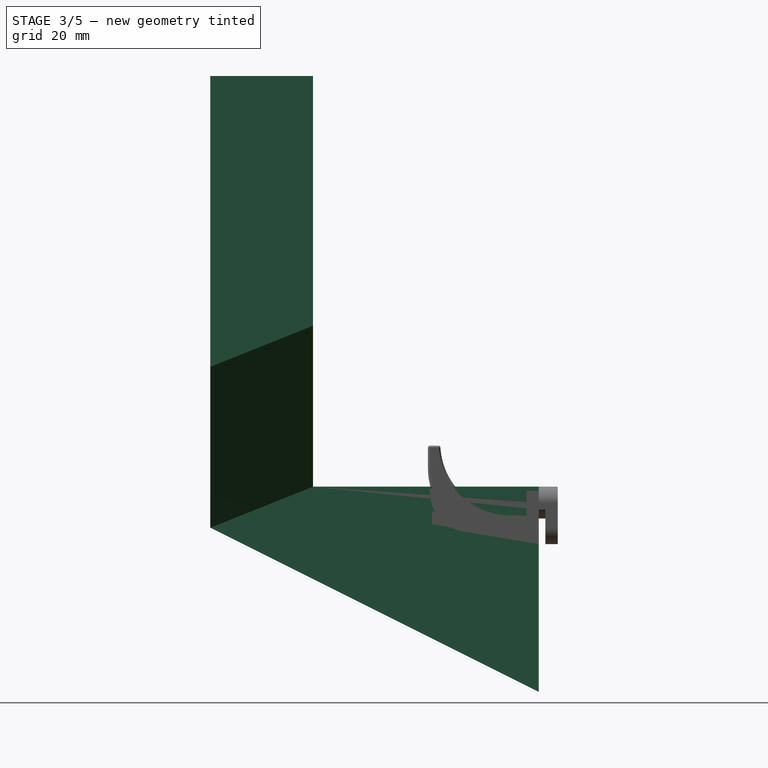
[diagram: stage 3 of 5 — right view after this stage's code; geometry added in this stage tinted green]
FEATURE [PartDesign::Body] Body002  label="roundPeg"
  AllowCompound = false
  Group = -> [Sketch002,Pad018,Pad019,Pad020,Pad021]
  Origin = -> Origin002
  Tip = -> Pad021
FEATURE [Sketcher::SketchObject] Sketch004
  ArcFitTolerance = 1e-06
  AttachmentSupport = -> [XZ_Plane004]
  FullyConstrained = true
  MakeInternals = false
  MapMode = 5
  Placement = pos=(0,0,0) rot=(1,0,0;1.5708rad)
  sketch-geometry (16):
    g0: ArcOfCircle CenterX=0 CenterY=0 CenterZ=0 NormalX=0 NormalY=0 NormalZ=1 AngleXU=0 Radius=4 StartAngle=3.14159 EndAngle=6.28319
    g1: LineSegment [constr] StartX=-4 StartY=-9e-16 StartZ=0 EndX=-4 EndY=6 EndZ=0
    g2: LineSegment [constr] StartX=4 StartY=0 StartZ=0 EndX=4 EndY=6 EndZ=0
    g3: ArcOfCircle CenterX=-1e-16 CenterY=6 CenterZ=0 NormalX=0 NormalY=0 NormalZ=1 AngleXU=0 Radius=4 StartAngle=6.83145e-09 EndAngle=3.14159
    g4: LineSegment [constr] StartX=0 StartY=10 StartZ=0 EndX=0 EndY=-4 EndZ=0
    g5: ArcOfCircle CenterX=0 CenterY=7 CenterZ=0 NormalX=0 NormalY=0 NormalZ=1 AngleXU=0 Radius=4.75 StartAngle=3.71121 EndAngle=5.71356
    g6: LineSegment StartX=-4 StartY=10 StartZ=0 EndX=-4 EndY=-4 EndZ=0
    g7: LineSegment StartX=-4 StartY=-4 StartZ=0 EndX=4 EndY=-4 EndZ=0
    g8: LineSegment StartX=4 StartY=-4 StartZ=0 EndX=4 EndY=10 EndZ=0
    g9: LineSegment StartX=4 StartY=10 StartZ=0 EndX=-4 EndY=10 EndZ=0
    g10: LineSegment [constr] StartX=-1e-16 StartY=6 StartZ=0 EndX=4 EndY=6 EndZ=0
    g11: LineSegment [constr] StartX=-1e-16 StartY=6 StartZ=0 EndX=-4 EndY=6 EndZ=0
    g12: LineSegment StartX=-4 StartY=6 StartZ=0 EndX=-4 EndY=4.43826 EndZ=0
    g13: LineSegment StartX=-4 StartY=4.43826 StartZ=0 EndX=-4 EndY=-9e-16 EndZ=0
    g14: LineSegment StartX=4 StartY=6 StartZ=0 EndX=4 EndY=4.43826 EndZ=0
    g15: LineSegment StartX=4 StartY=4.43826 StartZ=0 EndX=4 EndY=0 EndZ=0
  constraints (45):
    c: Diameter(g0) = 8
    c: Coincident(g0,g-1)
    c: Vertical(g1)
    c: Vertical(g2)
    c: Coincident(g3,g1)
    c: Coincident(g3,g2)
    c: Equal(g3,g0)
    c: Tangent(g0,g2) = -1.5708
    c: Tangent(g0,g1) = 1.5708
    c: PointOnObject(g4,g3)
    c: PointOnObject(g4,g0)
    c: Vertical(g4)
    c: PointOnObject(g4,g-2)
    c: Equal(g1,g2)
    c: DistanceY(g4,g4) = 14
    c: Diameter(g5) = 9.5
    c: PointOnObject(g5,g4)
    c: Distance(g5,g0) = 7
    c: PointOnObject(g5,g1)
    c: Coincident(g6,g7)
    c: Coincident(g7,g8)
    c: Coincident(g8,g9)
    c: Coincident(g9,g6)
    c: Vertical(g6)
    c: Vertical(g8)
    c: Horizontal(g7)
    c: Horizontal(g9)
    c: PointOnObject(g4,g9)
    c: PointOnObject(g4,g7)
    c: DistanceX(g9,g9) = 8
    c: Coincident(g10,g3)
    c: PointOnObject(g10,g8)
    c: Horizontal(g10)
    c: Coincident(g11,g3)
    c: PointOnObject(g11,g6)
    c: Horizontal(g11)
    c: Equal(g11,g10)
    c: Coincident(g12,g1)
    c: Coincident(g12,g5)
    c: Coincident(g13,g5)
    c: Coincident(g13,g0)
    c: Coincident(g14,g2)
    c: Coincident(g14,g5)
    c: Coincident(g15,g5)
    c: Tangent(g15,g0) = 1.5708
FEATURE [PartDesign::Pad] Pad025  label="pegBtm001"
  Direction = (0,-1,2e-16)
  Length = 3
  Length2 = 10
  Placement = pos=(0,0,0) rot=(1,0,0;1.5708rad)
  Profile = -> Sketch004 [Edge5,Edge6,Edge1,Edge2,Edge3,Edge4]
  ReferenceAxis = -> Sketch004 [N_Axis]
  Refine = true
  Suppressed = false
  Type = 0
FEATURE [PartDesign::Pad] Pad026  label="pegWaist001"
  BaseFeature = -> Pad025
  Direction = (0,-1,2e-16)
  Length = 4.6
  Length2 = 10
  Placement = pos=(0,0,0) rot=(1,0,0;1.5708rad)
  Profile = -> Sketch004 [Edge2,Edge3,Edge7,Edge1]
  ReferenceAxis = -> Sketch004 [N_Axis]
  Refine = true
  Suppressed = false
  Type = 0
  expr: Length = <<pegBtm001>>.Length + 1.6 mm
FEATURE [PartDesign::Pad] Pad027
  BaseFeature = -> Pad026
  Direction = (0,-1,2e-16)
  Length = 7.6
  Length2 = -4.6
  Placement = pos=(0,0,0) rot=(1,0,0;1.5708rad)
  Profile = -> Sketch004 [Edge11,Edge10,Edge9,Edge8]
  ReferenceAxis = -> Sketch004 [N_Axis]
  Refine = true
  Suppressed = false
  Type = 4
  expr: Length = -Length2 + 3 mm
  expr: Length2 = -<<pegWaist001>>.Length
FEATURE [PartDesign::Fillet] Fillet001
  Base = -> Pad027 [Edge2,Edge27,Edge1,Edge28]
  BaseFeature = -> Pad027
  Placement = pos=(0,0,0) rot=(1,0,0;1.5708rad)
  Radius = 1
  Refine = true
  SupportTransform = false
  Suppressed = false
  UseAllEdges = false
FEATURE [PartDesign::Body] Body005  label="iPeg002"
  AllowCompound = false
  Group = -> [Sketch005,Pad028,Pad029,Pad030,Fillet002]
  Origin = -> Origin005
  Placement = pos=(0,0,-39) rot=(0,0,1;0rad)
  Tip = -> Fillet002
FEATURE [Sketcher::SketchObject] Sketch006
  ArcFitTolerance = 1e-06
  AttachmentSupport = -> [YZ_Plane004]
  ExternalGeometry = -> [Fillet001]
  FullyConstrained = true
  MakeInternals = false
  MapMode = 5
  Placement = pos=(0,0,0) rot=(0.57735,-0.57735,-0.57735;2.0944rad)
  sketch-geometry (7):
    g0: LineSegment StartX=59.6 StartY=10 StartZ=0 EndX=59.6 EndY=110 EndZ=0
    g1: LineSegment StartX=59.6 StartY=110 StartZ=0 EndX=84.6 EndY=110 EndZ=0
    g2: LineSegment StartX=84.6 StartY=110 StartZ=0 EndX=84.6 EndY=0 EndZ=0
    g3: LineSegment StartX=84.6 StartY=0 StartZ=0 EndX=4.6 EndY=-40 EndZ=0
    g4: LineSegment StartX=59.6 StartY=10 StartZ=0 EndX=4.6 EndY=10 EndZ=0
    g5: LineSegment StartX=4.6 StartY=10 StartZ=0 EndX=4.6 EndY=-40 EndZ=0
    g6: LineSegment StartX=59.6 StartY=10 StartZ=0 EndX=84.6 EndY=0 EndZ=0
  constraints (20):
    c: Vertical(g0)
    c: Coincident(g1,g0)
    c: Horizontal(g1)
    c: Coincident(g2,g1)
    c: PointOnObject(g2,g-1)
    c: Vertical(g2)
    c: Coincident(g3,g2)
    c: Coincident(g4,g0)
    c: Horizontal(g4)
    c: DistanceX(g1,g1) = 25
    c: DistanceY(g0,g0) = 100
    c: Coincident(g5,g4)
    c: Coincident(g5,g3)
    c: Vertical(g5)
    c: PointOnObject(g4,g-3)
    c: DistanceY(g5,g5) = 50
    c: DistanceX(g4,g4) = 55
    c: PointOnObject(g4,g-4)
    c: Coincident(g6,g0)
    c: Coincident(g6,g2)
FEATURE [PartDesign::Pad] Pad031
  BaseFeature = -> Fillet001
  Direction = (-1,0,0)
  Length = 8
  Length2 = 10
  Midplane = true
  Placement = pos=(0,0,0) rot=(1,0,0;1.5708rad)
  Profile = -> Sketch006 [Edge6,Edge5,Edge4,Edge3,Edge1,Edge2]
  ReferenceAxis = -> Sketch006 [N_Axis]
  Refine = true
  Suppressed = false
  Type = 0
FEATURE [PartDesign::Pad] Pad032
  BaseFeature = -> Pad031
  Direction = (-1,0,0)
  Length = 25
  Length2 = 10
  Placement = pos=(0,0,0) rot=(1,0,0;1.5708rad)
  Profile = -> Sketch006 [Edge1,Edge7,Edge3,Edge2]
  ReferenceAxis = -> Sketch006 [N_Axis]
  Refine = true
  Reversed = true
  Suppressed = false
  Type = 0
FEATURE [PartDesign::SubtractiveBox] Box
  AttacherType = Attacher::AttachEngine3D
  AttachmentOffset = pos=(-21,0,-36) rot=(0,0,-1;0.523599rad)
  AttachmentSupport = -> [Pad032]
  BaseFeature = -> Pad032
  Height = 83
  Length = 42
  MapMode = 7
  Placement = pos=(4,-26.1748,23.3701) rot=(0.951429,0.254935,-0.172599;1.99709rad)
  Refine = true
  Suppressed = false
  Width = 82
FEATURE [Sketcher::SketchObject] Sketch003
  ArcFitTolerance = 1e-06
  AttachmentSupport = -> [XZ_Plane003]
  FullyConstrained = true
  MakeInternals = false
  MapMode = 5
  Placement = pos=(0,0,0) rot=(1,0,0;1.5708rad)
  sketch-geometry (16):
    g0: ArcOfCircle CenterX=0 CenterY=0 CenterZ=0 NormalX=0 NormalY=0 NormalZ=1 AngleXU=0 Radius=4 StartAngle=3.14159 EndAngle=6.28319
    g1: LineSegment [constr] StartX=-4 StartY=-9e-16 StartZ=0 EndX=-4 EndY=6 EndZ=0
    g2: LineSegment [constr] StartX=4 StartY=0 StartZ=0 EndX=4 EndY=6 EndZ=0
    g3: ArcOfCircle CenterX=-1e-16 CenterY=6 CenterZ=0 NormalX=0 NormalY=0 NormalZ=1 AngleXU=0 Radius=4 StartAngle=6.83145e-09 EndAngle=3.14159
    g4: LineSegment [constr] StartX=0 StartY=10 StartZ=0 EndX=0 EndY=-4 EndZ=0
    g5: ArcOfCircle CenterX=-1e-16 CenterY=7 CenterZ=0 NormalX=0 NormalY=0 NormalZ=1 AngleXU=0 Radius=4.75 StartAngle=3.71121 EndAngle=5.71356
    g6: LineSegment StartX=-4 StartY=10 StartZ=0 EndX=-4 EndY=-4 EndZ=0
    g7: LineSegment StartX=-4 StartY=-4 StartZ=0 EndX=4 EndY=-4 EndZ=0
    g8: LineSegment StartX=4 StartY=-4 StartZ=0 EndX=4 EndY=10 EndZ=0
    g9: LineSegment StartX=4 StartY=10 StartZ=0 EndX=-4 EndY=10 EndZ=0
    g10: LineSegment [constr] StartX=-1e-16 StartY=6 StartZ=0 EndX=4 EndY=6 EndZ=0
    g11: LineSegment [constr] StartX=-1e-16 StartY=6 StartZ=0 EndX=-4 EndY=6 EndZ=0
    g12: LineSegment StartX=-4 StartY=6 StartZ=0 EndX=-4 EndY=4.43826 EndZ=0
    g13: LineSegment StartX=-4 StartY=4.43826 StartZ=0 EndX=-4 EndY=-9e-16 EndZ=0
    g14: LineSegment StartX=4 StartY=6 StartZ=0 EndX=4 EndY=4.43826 EndZ=0
    g15: LineSegment StartX=4 StartY=4.43826 StartZ=0 EndX=4 EndY=0 EndZ=0
  constraints (45):
    c: Diameter(g0) = 8
    c: Coincident(g0,g-1)
    c: Vertical(g1)
    c: Vertical(g2)
    c: Coincident(g3,g1)
    c: Coincident(g3,g2)
    c: Equal(g3,g0)
    c: Tangent(g0,g2) = -1.5708
    c: Tangent(g0,g1) = 1.5708
    c: PointOnObject(g4,g3)
    c: PointOnObject(g4,g0)
    c: Vertical(g4)
    c: PointOnObject(g4,g-2)
    c: Equal(g1,g2)
    c: DistanceY(g4,g4) = 14
    c: Diameter(g5) = 9.5
    c: PointOnObject(g5,g4)
    c: Distance(g5,g0) = 7
    c: PointOnObject(g5,g1)
    c: Coincident(g6,g7)
    c: Coincident(g7,g8)
    c: Coincident(g8,g9)
    c: Coincident(g9,g6)
    c: Vertical(g6)
    c: Vertical(g8)
    c: Horizontal(g7)
    c: Horizontal(g9)
    c: PointOnObject(g4,g9)
    c: PointOnObject(g4,g7)
    c: DistanceX(g9,g9) = 8
    c: Coincident(g10,g3)
    c: PointOnObject(g10,g8)
    c: Horizontal(g10)
    c: Coincident(g11,g3)
    c: PointOnObject(g11,g6)
    c: Horizontal(g11)
    c: Equal(g11,g10)
    c: Coincident(g12,g1)
    c: Coincident(g12,g5)
    c: Coincident(g13,g5)
    c: Coincident(g13,g0)
    c: Coincident(g14,g2)
    c: Coincident(g14,g5)
    c: Coincident(g15,g5)
    c: Tangent(g15,g0) = 1.5708
FEATURE [PartDesign::Pad] Pad022  label="pegBtm"
  Direction = (0,-1,2e-16)
  Length = 3
  Length2 = 10
  Placement = pos=(0,0,0) rot=(1,0,0;1.5708rad)
  Profile = -> Sketch003 [Edge5,Edge6,Edge1,Edge2,Edge3,Edge4]
  ReferenceAxis = -> Sketch003 [N_Axis]
  Refine = true
  Suppressed = false
  Type = 0
FEATURE [PartDesign::Pad] Pad023  label="pegWaist"
  BaseFeature = -> Pad022
  Direction = (0,-1,2e-16)
  Length = 4.6
  Length2 = 10
  Placement = pos=(0,0,0) rot=(1,0,0;1.5708rad)
  Profile = -> Sketch003 [Edge2,Edge3,Edge7,Edge1]
  ReferenceAxis = -> Sketch003 [N_Axis]
  Refine = true
  Suppressed = false
  Type = 0
  expr: Length = <<pegBtm>>.Length + 1.6 mm
FEATURE [PartDesign::Pad] Pad024
  BaseFeature = -> Pad023
  Direction = (0,-1,2e-16)
  Length = 7.6
  Length2 = -4.6
  Placement = pos=(0,0,0) rot=(1,0,0;1.5708rad)
  Profile = -> Sketch003 [Edge11,Edge10,Edge9,Edge8]
  ReferenceAxis = -> Sketch003 [N_Axis]
  Refine = true
  Suppressed = false
  Type = 4
  expr: Length = -Length2 + 3 mm
  expr: Length2 = -<<pegWaist>>.Length
FEATURE [PartDesign::Fillet] Fillet
  Base = -> Pad024 [Edge1,Edge2,Edge28,Edge27]
  BaseFeature = -> Pad024
  Placement = pos=(0,0,0) rot=(1,0,0;1.5708rad)
  Radius = 1
  Refine = true
  SupportTransform = false
  Suppressed = false
  UseAllEdges = false
FEATURE [PartDesign::Body] Body003  label="iPeg"
  AllowCompound = false
  Group = -> [Sketch003,Pad022,Pad023,Pad024,Fillet]
  Origin = -> Origin003
  Tip = -> Fillet
FEATURE [PartDesign::Fillet] Fillet004
  Base = -> Pad036 [Edge1,Edge2,Edge26,Edge25,Edge38,Edge35,Edge11,Edge10,Edge12,Edge36,Edge39,Edge42,Edge37,Edge41,Edge40,Edge47,Edge43,Edge45,Edge44,Edge46,Edge34,Edge21,Edge14,Edge20,Edge18]
  BaseFeature = -> Pad036
  Placement = pos=(0,0,0) rot=(1,0,0;1.5708rad)
  Radius = 1
  Refine = true
  SupportTransform = false
  Suppressed = false
  UseAllEdges = false
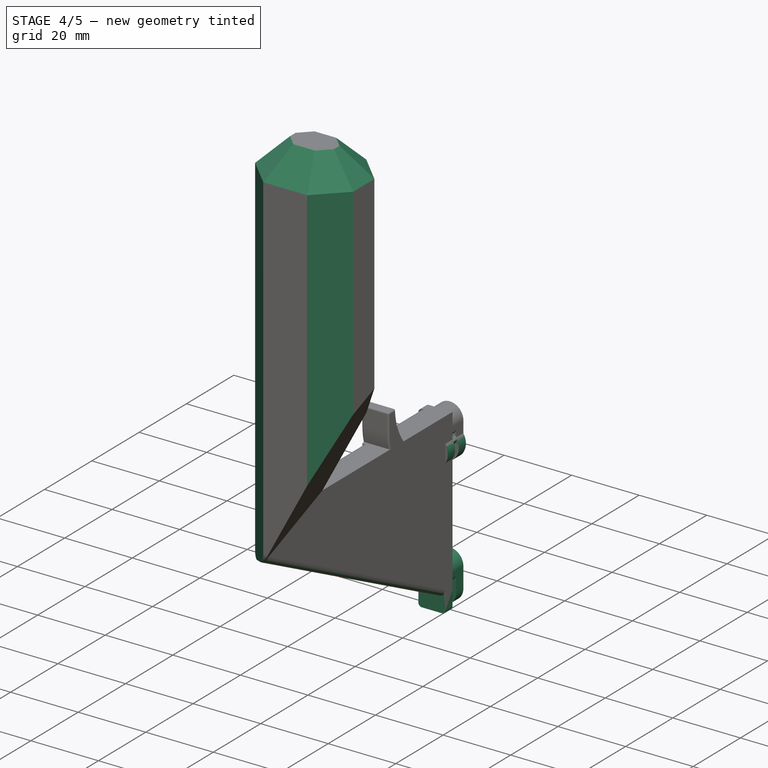
[diagram: stage 4 of 5 — iso view after this stage's code; geometry added in this stage tinted green]
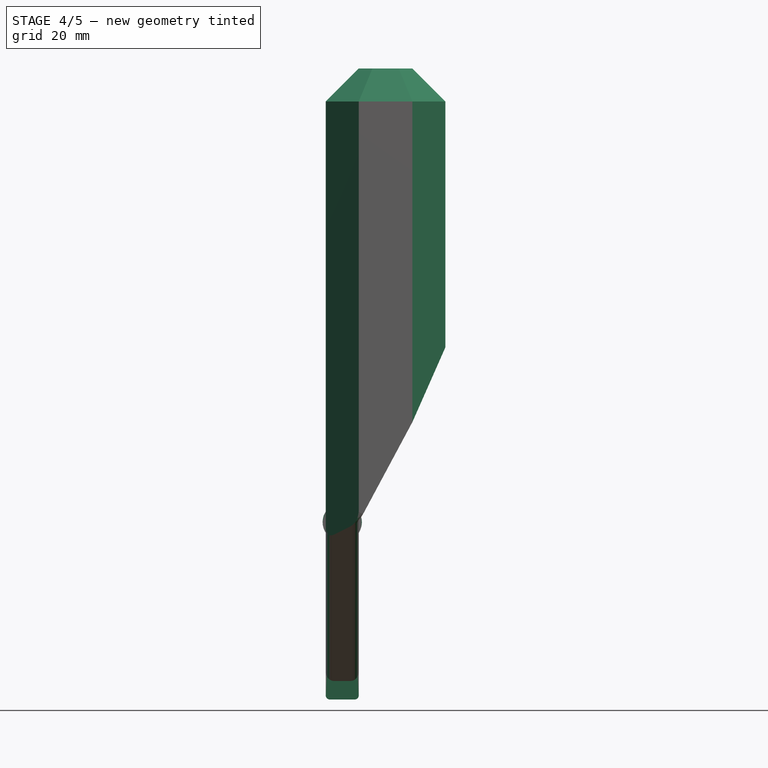
[diagram: stage 4 of 5 — front view after this stage's code; geometry added in this stage tinted green]
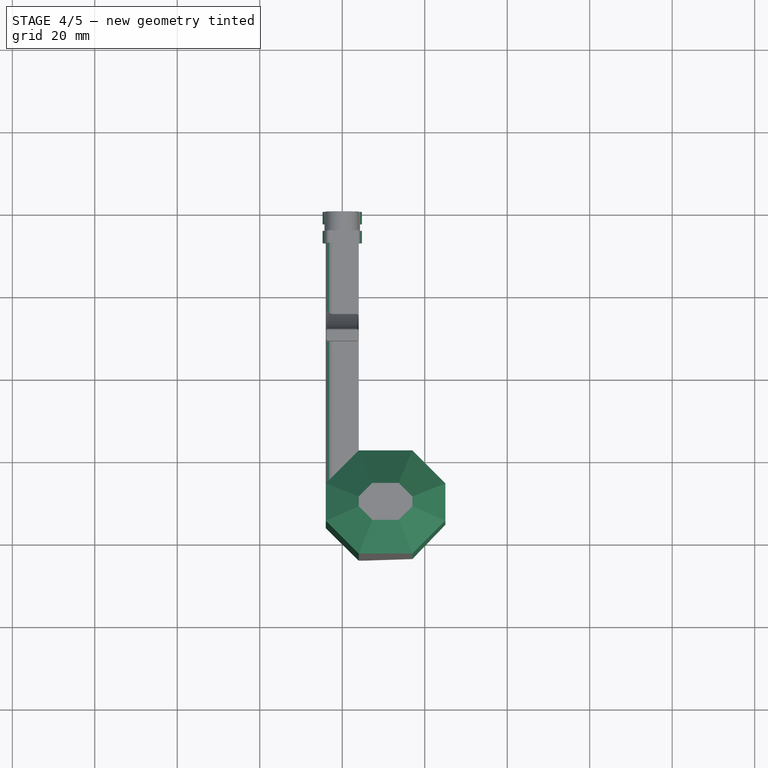
[diagram: stage 4 of 5 — top view after this stage's code; geometry added in this stage tinted green]
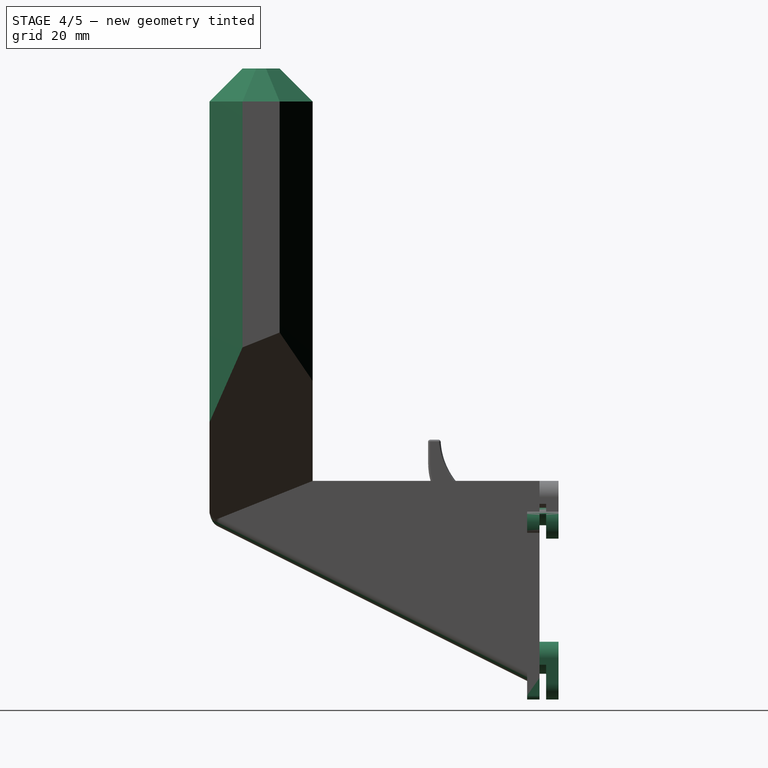
[diagram: stage 4 of 5 — right view after this stage's code; geometry added in this stage tinted green]
FEATURE [PartDesign::Body] Body001  label="lower"
  AllowCompound = false
  Group = -> [Pad012,Sketch001,Pad007,Pad013,Pad014,Pad015]
  Origin = -> Origin001
  Tip = -> Pad015
FEATURE [Sketcher::SketchObject] Sketch002
  ArcFitTolerance = 1e-06
  AttachmentSupport = -> [XY_Plane002]
  FullyConstrained = true
  MakeInternals = false
  MapMode = 3
  Placement = pos=(0,0,0) rot=(1,0,0;1.5708rad)
  sketch-geometry (21):
    g0: LineSegment StartX=-2.56174 StartY=-4 StartZ=0 EndX=2.56174 EndY=-4 EndZ=0
    g1: ArcOfCircle CenterX=0 CenterY=4 CenterZ=0 NormalX=0 NormalY=0 NormalZ=1 AngleXU=0 Radius=4.75 StartAngle=3.5762 EndAngle=5.84858
    g2: ArcOfCircle CenterX=0 CenterY=0 CenterZ=0 NormalX=0 NormalY=0 NormalZ=1 AngleXU=0 Radius=4.75 StartAngle=0.434606 EndAngle=2.70699
    g3: Circle CenterX=0 CenterY=-1 CenterZ=0 NormalX=0 NormalY=0 NormalZ=1 AngleXU=0 Radius=1.85
    g4: ArcOfCircle CenterX=0 CenterY=-1 CenterZ=0 NormalX=0 NormalY=0 NormalZ=1 AngleXU=0 Radius=4 StartAngle=5.51433 EndAngle=10.1936
    g5: ArcOfCircle CenterX=0 CenterY=0 CenterZ=0 NormalX=0 NormalY=0 NormalZ=1 AngleXU=0 Radius=4.75 StartAngle=5.28201 EndAngle=5.36244
    g6: ArcOfCircle CenterX=0 CenterY=0 CenterZ=0 NormalX=0 NormalY=0 NormalZ=1 AngleXU=0 Radius=4.75 StartAngle=5.36244 EndAngle=6.71779
    g7: ArcOfCircle CenterX=0 CenterY=0 CenterZ=0 NormalX=0 NormalY=0 NormalZ=1 AngleXU=0 Radius=4.75 StartAngle=2.70699 EndAngle=4.06234
    g8: ArcOfCircle CenterX=0 CenterY=0 CenterZ=0 NormalX=0 NormalY=0 NormalZ=1 AngleXU=0 Radius=4.75 StartAngle=4.06234 EndAngle=4.14277
    g9: LineSegment StartX=-2.56174 StartY=-4 StartZ=0 EndX=-6.56174 EndY=-4 EndZ=0
    g10: LineSegment StartX=-8.06174 StartY=-2.5 StartZ=0 EndX=-8.06174 EndY=3.25 EndZ=0
    g11: LineSegment StartX=2.56174 StartY=-4 StartZ=0 EndX=6.56174 EndY=-4 EndZ=0
    g12: LineSegment StartX=8.06174 StartY=-2.5 StartZ=0 EndX=8.06174 EndY=3.25 EndZ=0
    g13: ArcOfCircle CenterX=6.56174 CenterY=3.25 CenterZ=0 NormalX=0 NormalY=0 NormalZ=1 AngleXU=0 Radius=1.5 StartAngle=0 EndAngle=1.5708
    g14: ArcOfCircle CenterX=6.56174 CenterY=-2.5 CenterZ=0 NormalX=0 NormalY=0 NormalZ=1 AngleXU=0 Radius=1.5 StartAngle=4.71239 EndAngle=6.28319
    g15: GeomPoint [constr] X=8.06174 Y=-4 Z=0
    g16: ArcOfCircle CenterX=-6.56174 CenterY=-2.5 CenterZ=0 NormalX=0 NormalY=0 NormalZ=1 AngleXU=0 Radius=1.5 StartAngle=3.14159 EndAngle=4.71239
    g17: GeomPoint [constr] X=-8.06174 Y=-4 Z=0
    g18: ArcOfCircle CenterX=-6.56174 CenterY=3.25 CenterZ=0 NormalX=0 NormalY=0 NormalZ=1 AngleXU=0 Radius=1.5 StartAngle=1.5708 EndAngle=3.14159
    g19: LineSegment StartX=-6.56174 StartY=4.75 StartZ=0 EndX=6.56174 EndY=4.75 EndZ=0
    g20: LineSegment [constr] StartX=6.56174 StartY=-4 StartZ=0 EndX=6.56174 EndY=4.75 EndZ=0
  constraints (55):
    c: Coincident(g5,g-1)
    c: Horizontal(g0)
    c: Diameter(g1) = 9.5
    c: PointOnObject(g1,g-2)
    c: Distance(g1,g5) = 4
    c: Distance(g5,g0) = 4
    c: Coincident(g8,g0)
    c: Coincident(g5,g0)
    c: Coincident(g6,g2)
    c: Coincident(g5,g2)
    c: Coincident(g6,g1)
    c: Coincident(g2,g7)
    c: Coincident(g2,g7)
    c: Coincident(g2,g1)
    c: PointOnObject(g3,g-2)
    c: Diameter(g3) = 3.7
    c: Diameter(g4) = 8
    c: Coincident(g4,g3)
    c: Coincident(g5,g6)
    c: Coincident(g5,g6)
    c: Diameter(g5) = 9.5
    c: Coincident(g7,g8)
    c: Coincident(g7,g8)
    c: Coincident(g7,g4)
    c: Coincident(g4,g5)
    c: Distance(g3,g0) = 3
    c: Coincident(g9,g0)
    c: Horizontal(g9)
    c: Vertical(g10)
    c: Coincident(g11,g0)
    c: Horizontal(g11)
    c: Vertical(g12)
    c: Tangent(g12,g13) = -1.5708
    c: PointOnObject(g15,g12)
    c: PointOnObject(g15,g11)
    c: Tangent(g12,g14) = -1.5708
    c: Tangent(g11,g14) = -1.5708
    c: PointOnObject(g17,g9)
    c: PointOnObject(g17,g10)
    c: Tangent(g9,g16) = 1.5708
    c: Tangent(g10,g16) = 1.5708
    c: Tangent(g10,g18) = 1.5708
    c: Equal(g18,g16)
    c: Equal(g16,g13)
    c: Equal(g13,g14)
    c: DistanceX(g11,g11) = 4
    c: Radius(g14) = 1.5
    c: Equal(g9,g11)
    c: Tangent(g19,g18) = 1.5708
    c: Coincident(g19,g13)
    c: Horizontal(g19)
    c: Tangent(g19,g2)
    c: Coincident(g20,g11)
    c: Coincident(g20,g13)
    c: Vertical(g20)
FEATURE [PartDesign::Pad] Pad018  label="pegShoulder"
  Direction = (0,-1,2e-16)
  Length = 3
  Length2 = 0
  Profile = -> Sketch002 [Edge5,Edge8,Edge4,Edge1,Edge6,Edge3]
  ReferenceAxis = -> Sketch002 [N_Axis]
  Refine = true
  Suppressed = false
  Type = 0
FEATURE [PartDesign::Pad] Pad019  label="hookWaist002"
  BaseFeature = -> Pad018
  Direction = (0,-1,2e-16)
  Length = 4.6
  Length2 = -3
  Profile = -> Sketch002 [Edge2,Edge3]
  ReferenceAxis = -> Sketch002 [N_Axis]
  Refine = true
  Suppressed = false
  Type = 4
  expr: Length = <<pegShoulder>>.Length + 1.6 mm
  expr: Length2 = -<<pegShoulder>>.Length
FEATURE [PartDesign::Pad] Pad020  label="hookBtm001"
  BaseFeature = -> Pad019
  Direction = (0,-1,2e-16)
  Length = 7.6
  Length2 = -4.6
  Profile = -> Sketch002 [Edge5,Edge8,Edge4,Edge3,Edge1,Edge6]
  ReferenceAxis = -> Sketch002 [N_Axis]
  Refine = true
  Suppressed = false
  Type = 4
  expr: Length = <<hookWaist002>>.Length + 3 mm
  expr: Length2 = -<<hookWaist002>>.Length
FEATURE [Sketcher::SketchObject] Sketch005
  ArcFitTolerance = 1e-06
  AttachmentSupport = -> [XZ_Plane005]
  FullyConstrained = true
  MakeInternals = false
  MapMode = 5
  Placement = pos=(0,0,0) rot=(1,0,0;1.5708rad)
  sketch-geometry (16):
    g0: ArcOfCircle CenterX=0 CenterY=0 CenterZ=0 NormalX=0 NormalY=0 NormalZ=1 AngleXU=0 Radius=4 StartAngle=3.14159 EndAngle=6.28319
    g1: LineSegment [constr] StartX=-4 StartY=-9e-16 StartZ=0 EndX=-4 EndY=6 EndZ=0
    g2: LineSegment [constr] StartX=4 StartY=0 StartZ=0 EndX=4 EndY=6 EndZ=0
    g3: ArcOfCircle CenterX=-1e-16 CenterY=6 CenterZ=0 NormalX=0 NormalY=0 NormalZ=1 AngleXU=0 Radius=4 StartAngle=6.83145e-09 EndAngle=3.14159
    g4: LineSegment [constr] StartX=0 StartY=10 StartZ=0 EndX=0 EndY=-4 EndZ=0
    g5: ArcOfCircle CenterX=0 CenterY=7 CenterZ=0 NormalX=0 NormalY=0 NormalZ=1 AngleXU=0 Radius=4.75 StartAngle=3.71121 EndAngle=5.71356
    g6: LineSegment StartX=-4 StartY=10 StartZ=0 EndX=-4 EndY=-4 EndZ=0
    g7: LineSegment StartX=-4 StartY=-4 StartZ=0 EndX=4 EndY=-4 EndZ=0
    g8: LineSegment StartX=4 StartY=-4 StartZ=0 EndX=4 EndY=10 EndZ=0
    g9: LineSegment StartX=4 StartY=10 StartZ=0 EndX=-4 EndY=10 EndZ=0
    g10: LineSegment [constr] StartX=-1e-16 StartY=6 StartZ=0 EndX=4 EndY=6 EndZ=0
    g11: LineSegment [constr] StartX=-1e-16 StartY=6 StartZ=0 EndX=-4 EndY=6 EndZ=0
    g12: LineSegment StartX=-4 StartY=6 StartZ=0 EndX=-4 EndY=4.43826 EndZ=0
    g13: LineSegment StartX=-4 StartY=4.43826 StartZ=0 EndX=-4 EndY=-9e-16 EndZ=0
    g14: LineSegment StartX=4 StartY=6 StartZ=0 EndX=4 EndY=4.43826 EndZ=0
    g15: LineSegment StartX=4 StartY=4.43826 StartZ=0 EndX=4 EndY=0 EndZ=0
  constraints (45):
    c: Diameter(g0) = 8
    c: Coincident(g0,g-1)
    c: Vertical(g1)
    c: Vertical(g2)
    c: Coincident(g3,g1)
    c: Coincident(g3,g2)
    c: Equal(g3,g0)
    c: Tangent(g0,g2) = -1.5708
    c: Tangent(g0,g1) = 1.5708
    c: PointOnObject(g4,g3)
    c: PointOnObject(g4,g0)
    c: Vertical(g4)
    c: PointOnObject(g4,g-2)
    c: Equal(g1,g2)
    c: DistanceY(g4,g4) = 14
    c: Diameter(g5) = 9.5
    c: PointOnObject(g5,g4)
    c: Distance(g5,g0) = 7
    c: PointOnObject(g5,g1)
    c: Coincident(g6,g7)
    c: Coincident(g7,g8)
    c: Coincident(g8,g9)
    c: Coincident(g9,g6)
    c: Vertical(g6)
    c: Vertical(g8)
    c: Horizontal(g7)
    c: Horizontal(g9)
    c: PointOnObject(g4,g9)
    c: PointOnObject(g4,g7)
    c: DistanceX(g9,g9) = 8
    c: Coincident(g10,g3)
    c: PointOnObject(g10,g8)
    c: Horizontal(g10)
    c: Coincident(g11,g3)
    c: PointOnObject(g11,g6)
    c: Horizontal(g11)
    c: Equal(g11,g10)
    c: Coincident(g12,g1)
    c: Coincident(g12,g5)
    c: Coincident(g13,g5)
    c: Coincident(g13,g0)
    c: Coincident(g14,g2)
    c: Coincident(g14,g5)
    c: Coincident(g15,g5)
    c: Tangent(g15,g0) = 1.5708
FEATURE [PartDesign::Pad] Pad028  label="pegBtm002"
  Direction = (0,-1,2e-16)
  Length = 3
  Length2 = 10
  Placement = pos=(0,0,0) rot=(1,0,0;1.5708rad)
  Profile = -> Sketch005 [Edge5,Edge6,Edge1,Edge2,Edge3,Edge4]
  ReferenceAxis = -> Sketch005 [N_Axis]
  Refine = true
  Suppressed = false
  Type = 0
FEATURE [PartDesign::Pad] Pad029  label="pegWaist002"
  BaseFeature = -> Pad028
  Direction = (0,-1,2e-16)
  Length = 4.6
  Length2 = 10
  Placement = pos=(0,0,0) rot=(1,0,0;1.5708rad)
  Profile = -> Sketch005 [Edge2,Edge3,Edge7,Edge1]
  ReferenceAxis = -> Sketch005 [N_Axis]
  Refine = true
  Suppressed = false
  Type = 0
  expr: Length = <<pegBtm002>>.Length + 1.6 mm
FEATURE [PartDesign::Pad] Pad030
  BaseFeature = -> Pad029
  Direction = (0,-1,2e-16)
  Length = 7.6
  Length2 = -4.6
  Placement = pos=(0,0,0) rot=(1,0,0;1.5708rad)
  Profile = -> Sketch005 [Edge11,Edge10,Edge9,Edge8]
  ReferenceAxis = -> Sketch005 [N_Axis]
  Refine = true
  Suppressed = false
  Type = 4
  expr: Length = -Length2 + 3 mm
  expr: Length2 = -<<pegWaist002>>.Length
FEATURE [PartDesign::Fillet] Fillet002
  Base = -> Pad030 [Edge2,Edge27,Edge1,Edge28]
  BaseFeature = -> Pad030
  Placement = pos=(0,0,0) rot=(1,0,0;1.5708rad)
  Radius = 1
  Refine = true
  SupportTransform = false
  Suppressed = false
  UseAllEdges = false
FEATURE [PartDesign::Chamfer] Chamfer
  Angle = 45
  Base = -> Box [Edge2,Edge4,Edge9,Edge13]
  BaseFeature = -> Box
  ChamferType = 0
  FlipDirection = false
  Placement = pos=(4,-26.1748,23.3701) rot=(0.951429,0.254935,-0.172599;1.99709rad)
  Refine = true
  Size = 8
  Size2 = 1
  SupportTransform = false
  Suppressed = false
  UseAllEdges = false
FEATURE [PartDesign::Chamfer] Chamfer001
  Angle = 45
  Base = -> Chamfer [Face5]
  BaseFeature = -> Chamfer
  ChamferType = 0
  FlipDirection = false
  Placement = pos=(4,-26.1748,23.3701) rot=(0.951429,0.254935,-0.172599;1.99709rad)
  Refine = true
  Size = 8
  Size2 = 1
  SupportTransform = false
  Suppressed = false
  UseAllEdges = false
FEATURE [PartDesign::Fillet] Fillet003
  Base = -> Chamfer001 [Edge53,Edge48,Edge28]
  BaseFeature = -> Chamfer001
  Placement = pos=(4,-26.1748,23.3701) rot=(0.951429,0.254935,-0.172599;1.99709rad)
  Radius = 2
  Refine = true
  SupportTransform = false
  Suppressed = false
  UseAllEdges = false
FEATURE [PartDesign::Body] Body004  label="iPeg001"
  AllowCompound = false
  Group = -> [Sketch004,Pad025,Pad026,Pad027,Fillet001,Sketch006,Pad031,Pad032,Box,Chamfer,Chamfer001,Fillet003]
  Origin = -> Origin004
  Tip = -> Fillet003
FEATURE [Part::MultiFuse] Fusion
  Shapes = -> [Body004,Body005]
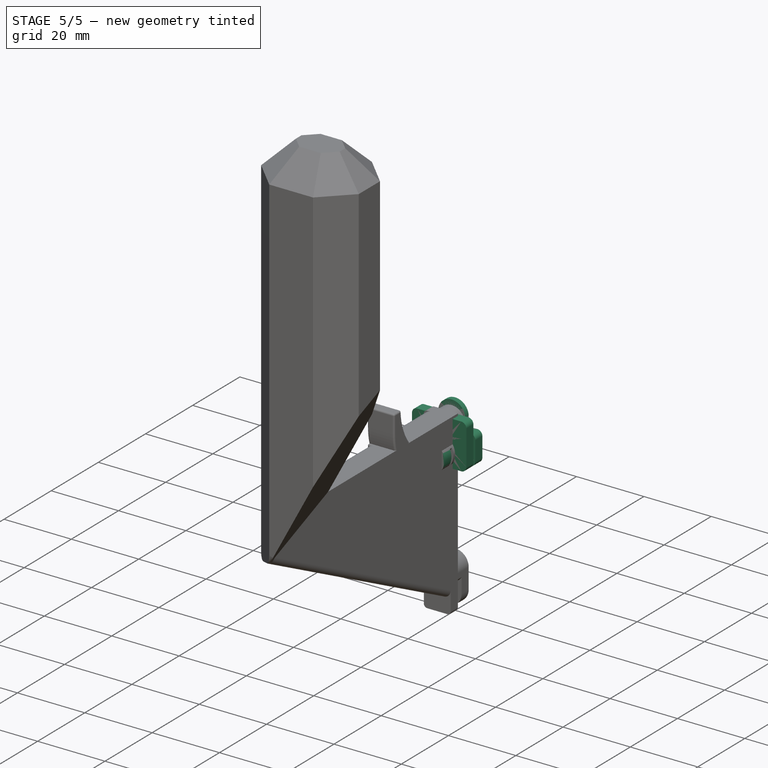
[diagram: stage 5 of 5 — iso view after this stage's code; geometry added in this stage tinted green]
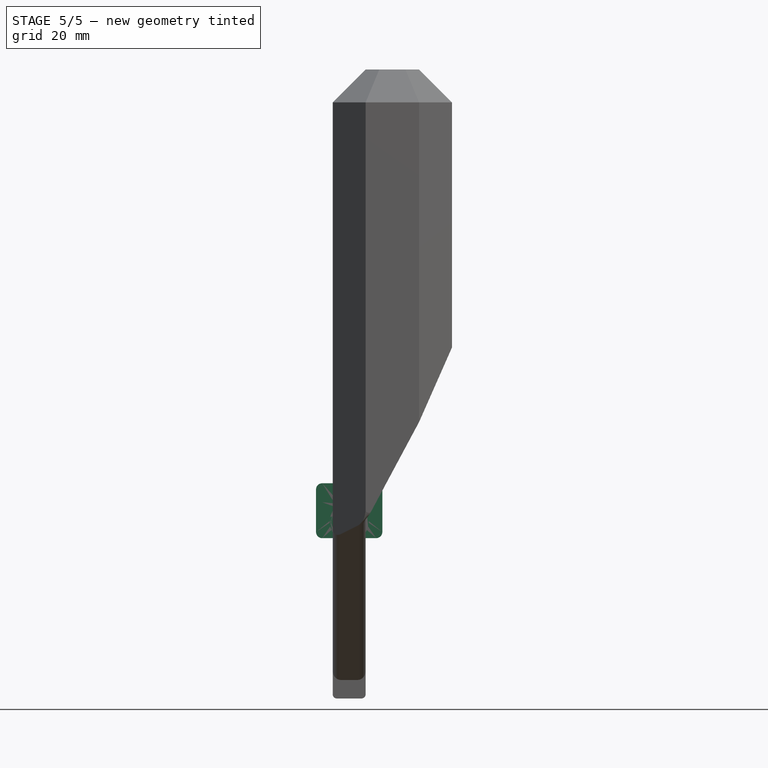
[diagram: stage 5 of 5 — front view after this stage's code; geometry added in this stage tinted green]
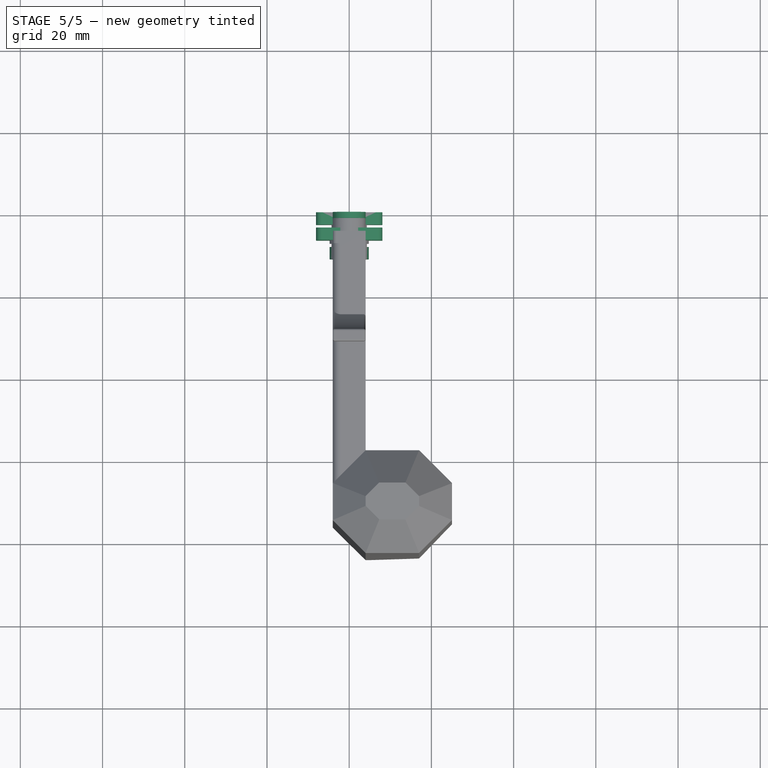
[diagram: stage 5 of 5 — top view after this stage's code; geometry added in this stage tinted green]
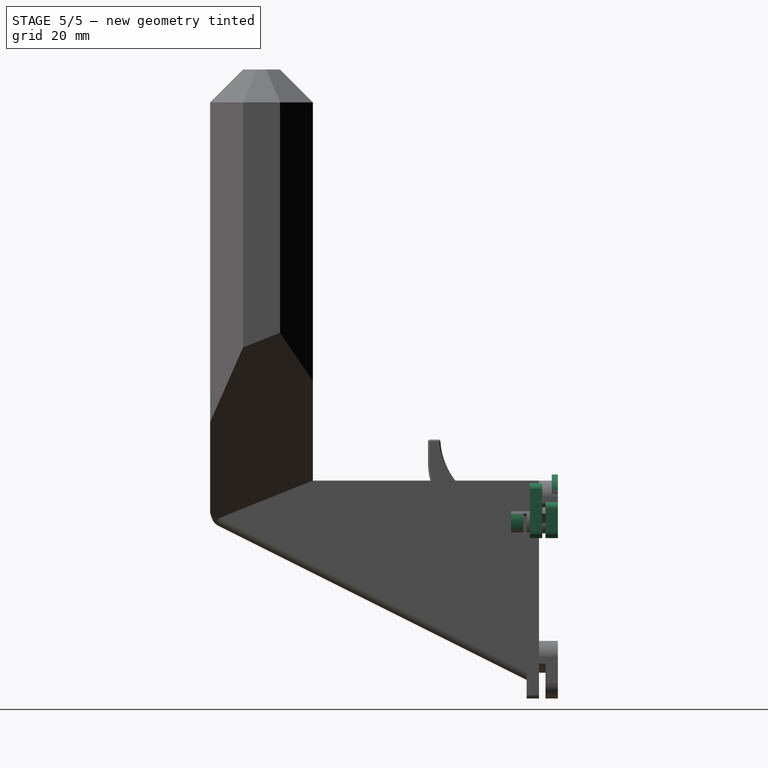
[diagram: stage 5 of 5 — right view after this stage's code; geometry added in this stage tinted green]
FEATURE [Sketcher::SketchObject] Sketch
  ArcFitTolerance = 1e-06
  AttachmentSupport = -> [XY_Plane]
  FullyConstrained = true
  MakeInternals = false
  MapMode = 3
  Placement = pos=(0,0,0) rot=(1,0,0;1.5708rad)
  sketch-geometry (21):
    g0: LineSegment StartX=-2.56174 StartY=-4 StartZ=0 EndX=2.56174 EndY=-4 EndZ=0
    g1: ArcOfCircle CenterX=0 CenterY=4 CenterZ=0 NormalX=0 NormalY=0 NormalZ=1 AngleXU=0 Radius=4.75 StartAngle=3.5762 EndAngle=5.84858
    g2: ArcOfCircle CenterX=0 CenterY=0 CenterZ=0 NormalX=0 NormalY=0 NormalZ=1 AngleXU=0 Radius=4.75 StartAngle=0.434606 EndAngle=2.70699
    g3: Circle CenterX=0 CenterY=-1 CenterZ=0 NormalX=0 NormalY=0 NormalZ=1 AngleXU=0 Radius=1.85
    g4: ArcOfCircle CenterX=0 CenterY=-1 CenterZ=0 NormalX=0 NormalY=0 NormalZ=1 AngleXU=0 Radius=4 StartAngle=5.51433 EndAngle=10.1936
    g5: ArcOfCircle CenterX=0 CenterY=0 CenterZ=0 NormalX=0 NormalY=0 NormalZ=1 AngleXU=0 Radius=4.75 StartAngle=5.28201 EndAngle=5.36244
    g6: ArcOfCircle CenterX=0 CenterY=0 CenterZ=0 NormalX=0 NormalY=0 NormalZ=1 AngleXU=0 Radius=4.75 StartAngle=5.36244 EndAngle=6.71779
    g7: ArcOfCircle CenterX=0 CenterY=0 CenterZ=0 NormalX=0 NormalY=0 NormalZ=1 AngleXU=0 Radius=4.75 StartAngle=2.70699 EndAngle=4.06234
    g8: ArcOfCircle CenterX=0 CenterY=0 CenterZ=0 NormalX=0 NormalY=0 NormalZ=1 AngleXU=0 Radius=4.75 StartAngle=4.06234 EndAngle=4.14277
    g9: LineSegment StartX=-2.56174 StartY=-4 StartZ=0 EndX=-6.56174 EndY=-4 EndZ=0
    g10: LineSegment StartX=-8.06174 StartY=-2.5 StartZ=0 EndX=-8.06174 EndY=3.25 EndZ=0
    g11: LineSegment StartX=2.56174 StartY=-4 StartZ=0 EndX=6.56174 EndY=-4 EndZ=0
    g12: LineSegment StartX=8.06174 StartY=-2.5 StartZ=0 EndX=8.06174 EndY=3.25 EndZ=0
    g13: ArcOfCircle CenterX=6.56174 CenterY=3.25 CenterZ=0 NormalX=0 NormalY=0 NormalZ=1 AngleXU=0 Radius=1.5 StartAngle=0 EndAngle=1.5708
    g14: ArcOfCircle CenterX=6.56174 CenterY=-2.5 CenterZ=0 NormalX=0 NormalY=0 NormalZ=1 AngleXU=0 Radius=1.5 StartAngle=4.71239 EndAngle=6.28319
    g15: GeomPoint [constr] X=8.06174 Y=-4 Z=0
    g16: ArcOfCircle CenterX=-6.56174 CenterY=-2.5 CenterZ=0 NormalX=0 NormalY=0 NormalZ=1 AngleXU=0 Radius=1.5 StartAngle=3.14159 EndAngle=4.71239
    g17: GeomPoint [constr] X=-8.06174 Y=-4 Z=0
    g18: ArcOfCircle CenterX=-6.56174 CenterY=3.25 CenterZ=0 NormalX=0 NormalY=0 NormalZ=1 AngleXU=0 Radius=1.5 StartAngle=1.5708 EndAngle=3.14159
    g19: LineSegment StartX=-6.56174 StartY=4.75 StartZ=0 EndX=6.56174 EndY=4.75 EndZ=0
    g20: LineSegment [constr] StartX=6.56174 StartY=-4 StartZ=0 EndX=6.56174 EndY=4.75 EndZ=0
  constraints (55):
    c: Coincident(g5,g-1)
    c: Horizontal(g0)
    c: Diameter(g1) = 9.5
    c: PointOnObject(g1,g-2)
    c: Distance(g1,g5) = 4
    c: Distance(g5,g0) = 4
    c: Coincident(g8,g0)
    c: Coincident(g5,g0)
    c: Coincident(g6,g2)
    c: Coincident(g5,g2)
    c: Coincident(g6,g1)
    c: Coincident(g2,g7)
    c: Coincident(g2,g7)
    c: Coincident(g2,g1)
    c: PointOnObject(g3,g-2)
    c: Diameter(g3) = 3.7
    c: Diameter(g4) = 8
    c: Coincident(g4,g3)
    c: Coincident(g5,g6)
    c: Coincident(g5,g6)
    c: Diameter(g5) = 9.5
    c: Coincident(g7,g8)
    c: Coincident(g7,g8)
    c: Coincident(g7,g4)
    c: Coincident(g4,g5)
    c: Distance(g3,g0) = 3
    c: Coincident(g9,g0)
    c: Horizontal(g9)
    c: Vertical(g10)
    c: Coincident(g11,g0)
    c: Horizontal(g11)
    c: Vertical(g12)
    c: Tangent(g12,g13) = -1.5708
    c: PointOnObject(g15,g12)
    c: PointOnObject(g15,g11)
    c: Tangent(g12,g14) = -1.5708
    c: Tangent(g11,g14) = -1.5708
    c: PointOnObject(g17,g9)
    c: PointOnObject(g17,g10)
    c: Tangent(g9,g16) = 1.5708
    c: Tangent(g10,g16) = 1.5708
    c: Tangent(g10,g18) = 1.5708
    c: Equal(g18,g16)
    c: Equal(g16,g13)
    c: Equal(g13,g14)
    c: DistanceX(g11,g11) = 4
    c: Radius(g14) = 1.5
    c: Equal(g9,g11)
    c: Tangent(g19,g18) = 1.5708
    c: Coincident(g19,g13)
    c: Horizontal(g19)
    c: Tangent(g19,g2)
    c: Coincident(g20,g11)
    c: Coincident(g20,g13)
    c: Vertical(g20)
FEATURE [PartDesign::Pad] Pad  label="hookHead"
  Direction = (0,-1,2e-16)
  Length = 1.5
  Length2 = 10
  Profile = -> Sketch [Edge7,Edge6,Edge5,Edge8]
  ReferenceAxis = -> Sketch [N_Axis]
  Refine = true
  Suppressed = false
  Type = 0
FEATURE [PartDesign::Pad] Pad001  label="hookNeck"
  BaseFeature = -> Pad
  Direction = (0,-1,2e-16)
  Length = 3.8
  Length2 = 10
  Profile = -> Sketch [Edge18]
  ReferenceAxis = -> Sketch [N_Axis]
  Refine = true
  Suppressed = false
  Type = 0
  expr: Length = <<hookHead>>.Length + 2.3 mm
FEATURE [PartDesign::Pad] Pad002  label="hookShoulder"
  BaseFeature = -> Pad001
  Direction = (0,-1,2e-16)
  Length = 6.8
  Length2 = -3.8
  Profile = -> Sketch [Edge5,Edge8,Edge4,Edge1,Edge6,Edge3]
  ReferenceAxis = -> Sketch [N_Axis]
  Refine = true
  Suppressed = false
  Type = 4
  expr: Length = <<hookNeck>>.Length + 3 mm
  expr: Length2 = -<<hookNeck>>.Length
FEATURE [PartDesign::Pad] Pad003  label="hookWaist"
  BaseFeature = -> Pad002
  Direction = (0,-1,2e-16)
  Length = 8.4
  Length2 = -6.8
  Profile = -> Sketch [Edge2,Edge3]
  ReferenceAxis = -> Sketch [N_Axis]
  Refine = true
  Suppressed = false
  Type = 4
  expr: Length = <<hookShoulder>>.Length + 1.6 mm
  expr: Length2 = -<<hookShoulder>>.Length
FEATURE [PartDesign::Pad] Pad004  label="hookBtm"
  BaseFeature = -> Pad003
  Direction = (0,-1,2e-16)
  Length = 11.4
  Length2 = -8.4
  Profile = -> Sketch [Edge5,Edge8,Edge4,Edge3,Edge1,Edge6]
  ReferenceAxis = -> Sketch [N_Axis]
  Refine = true
  Suppressed = false
  Type = 4
  expr: Length = <<hookWaist>>.Length + 3 mm
  expr: Length2 = -<<hookWaist>>.Length
FEATURE [PartDesign::Pad] Pad005
  BaseFeature = -> Pad004
  Direction = (0,-1,2e-16)
  Length = 6.8
  Length2 = -3.8
  Profile = -> Sketch [Edge13,Edge12,Edge11,Edge10,Edge9,Edge17,Edge5,Edge16,Vertex13,Edge14,Edge15]
  ReferenceAxis = -> Sketch [N_Axis]
  Refine = true
  Suppressed = false
  Type = 4
  expr: Length = <<hookShoulder>>.Length
  expr: Length2 = <<hookShoulder>>.Length2
FEATURE [PartDesign::Body] Body  label="upper"
  AllowCompound = false
  Group = -> [Sketch,Pad,Pad001,Pad002,Pad003,Pad004,Pad005]
  Origin = -> Origin
  Tip = -> Pad005
FEATURE [Sketcher::SketchObject] Sketch001
  ArcFitTolerance = 1e-06
  AttachmentSupport = -> [XY_Plane001]
  FullyConstrained = true
  MakeInternals = false
  MapMode = 3
  Placement = pos=(0,0,0) rot=(1,0,0;1.5708rad)
  sketch-geometry (19):
    g0: LineSegment StartX=-2.56174 StartY=-4 StartZ=0 EndX=2.56174 EndY=-4 EndZ=0
    g1: ArcOfCircle CenterX=0 CenterY=4 CenterZ=0 NormalX=0 NormalY=0 NormalZ=1 AngleXU=0 Radius=4.75 StartAngle=3.5762 EndAngle=5.84858
    g2: Circle CenterX=0 CenterY=7.5 CenterZ=0 NormalX=0 NormalY=0 NormalZ=1 AngleXU=0 Radius=1.85
    g3: LineSegment StartX=-2.56174 StartY=-4 StartZ=0 EndX=-6.56174 EndY=-4 EndZ=0
    g4: LineSegment StartX=-8.06174 StartY=-2.5 StartZ=0 EndX=-8.06174 EndY=7.85 EndZ=0
    g5: LineSegment StartX=2.56174 StartY=-4 StartZ=0 EndX=6.56174 EndY=-4 EndZ=0
    g6: LineSegment StartX=8.06174 StartY=-2.5 StartZ=0 EndX=8.06174 EndY=7.85 EndZ=0
    g7: ArcOfCircle CenterX=6.56174 CenterY=7.85 CenterZ=0 NormalX=0 NormalY=0 NormalZ=1 AngleXU=0 Radius=1.5 StartAngle=0 EndAngle=1.5708
    g8: ArcOfCircle CenterX=6.56174 CenterY=-2.5 CenterZ=0 NormalX=0 NormalY=0 NormalZ=1 AngleXU=0 Radius=1.5 StartAngle=4.71239 EndAngle=6.28319
    g9: GeomPoint [constr] X=8.06174 Y=-4 Z=0
    g10: ArcOfCircle CenterX=-6.56174 CenterY=-2.5 CenterZ=0 NormalX=0 NormalY=0 NormalZ=1 AngleXU=0 Radius=1.5 StartAngle=3.14159 EndAngle=4.71239
    g11: GeomPoint [constr] X=-8.06174 Y=-4 Z=0
    g12: ArcOfCircle CenterX=-6.56174 CenterY=7.85 CenterZ=0 NormalX=0 NormalY=0 NormalZ=1 AngleXU=0 Radius=1.5 StartAngle=1.5708 EndAngle=3.14159
    g13: LineSegment StartX=-6.56174 StartY=9.35 StartZ=0 EndX=6.56174 EndY=9.35 EndZ=0
    g14: LineSegment [constr] StartX=6.56174 StartY=-4 StartZ=0 EndX=6.56174 EndY=9.35 EndZ=0
    g15: Circle CenterX=0 CenterY=7.5 CenterZ=0 NormalX=0 NormalY=0 NormalZ=1 AngleXU=0 Radius=4
    g16: ArcOfCircle CenterX=0 CenterY=0 CenterZ=0 NormalX=0 NormalY=0 NormalZ=1 AngleXU=0 Radius=4.75 StartAngle=5.28201 EndAngle=6.71779
    g17: ArcOfCircle CenterX=0 CenterY=0 CenterZ=0 NormalX=0 NormalY=0 NormalZ=1 AngleXU=0 Radius=4.75 StartAngle=0.434606 EndAngle=2.70699
    g18: ArcOfCircle CenterX=0 CenterY=0 CenterZ=0 NormalX=0 NormalY=0 NormalZ=1 AngleXU=0 Radius=4.75 StartAngle=2.70699 EndAngle=4.14277
  constraints (49):
    c: Coincident(g16,g-1)
    c: Horizontal(g0)
    c: Diameter(g1) = 9.5
    c: PointOnObject(g1,g-2)
    c: Distance(g1,g16) = 4
    c: Distance(g16,g0) = 4
    c: Coincident(g16,g0)
    c: PointOnObject(g2,g-2)
    c: Diameter(g2) = 3.7
    c: Distance(g2,g0) = 11.5
    c: Coincident(g3,g0)
    c: Horizontal(g3)
    c: Vertical(g4)
    c: Coincident(g5,g0)
    c: Horizontal(g5)
    c: Vertical(g6)
    c: Tangent(g6,g7) = -1.5708
    c: PointOnObject(g9,g6)
    c: PointOnObject(g9,g5)
    c: Tangent(g6,g8) = -1.5708
    c: Tangent(g5,g8) = -1.5708
    c: PointOnObject(g11,g3)
    c: PointOnObject(g11,g4)
    c: Tangent(g3,g10) = 1.5708
    c: Tangent(g4,g10) = 1.5708
    c: Tangent(g4,g12) = 1.5708
    c: Equal(g12,g10)
    c: Equal(g10,g7)
    c: Equal(g7,g8)
    c: DistanceX(g5,g5) = 4
    c: Radius(g8) = 1.5
    c: Equal(g3,g5)
    c: Tangent(g13,g12) = 1.5708
    c: Coincident(g13,g7)
    c: Horizontal(g13)
    c: Coincident(g14,g5)
    c: Coincident(g14,g7)
    c: Vertical(g14)
    c: Coincident(g18,g0)
    c: Coincident(g15,g2)
    c: Diameter(g15) = 8
    c: Coincident(g16,g17)
    c: Coincident(g16,g17)
    c: Diameter(g16) = 9.5
    c: Coincident(g17,g18)
    c: Coincident(g17,g18)
    c: Coincident(g17,g1)
    c: Coincident(g16,g1)
    c: Tangent(g13,g2)
FEATURE [PartDesign::Pad] Pad012  label="hookHead001"
  Direction = (0,-1,2e-16)
  Length = 1.5
  Length2 = 10
  Profile = -> Sketch001 [Edge16]
  ReferenceAxis = -> Sketch001 [N_Axis]
  Refine = true
  Suppressed = false
  Type = 0
FEATURE [PartDesign::Pad] Pad007  label="hookNeck001"
  BaseFeature = -> Pad012
  Direction = (0,-1,2e-16)
  Length = 3.8
  Length2 = 10
  Profile = -> Sketch001 [Edge15]
  ReferenceAxis = -> Sketch001 [N_Axis]
  Refine = true
  Suppressed = false
  Type = 0
  expr: Length = <<hookHead001>>.Length + 2.3 mm
FEATURE [PartDesign::Pad] Pad013  label="hookShoulder001"
  BaseFeature = -> Pad007
  Direction = (0,-1,2e-16)
  Length = 6.8
  Length2 = -3.8
  Profile = -> Sketch001 [Edge12,Edge13,Edge14,Edge2,Edge1,Edge8,Edge9,Edge10,Edge11,Edge7]
  ReferenceAxis = -> Sketch001 [N_Axis]
  Refine = true
  Suppressed = false
  Type = 4
  expr: Length = <<hookNeck001>>.Length + 3 mm
  expr: Length2 = -<<hookNeck001>>.Length
FEATURE [PartDesign::Pad] Pad014  label="hookWaist001"
  BaseFeature = -> Pad013
  Direction = (0,-1,2e-16)
  Length = 8.4
  Length2 = -6.8
  Profile = -> Sketch001 [Edge4,Edge5]
  ReferenceAxis = -> Sketch001 [N_Axis]
  Refine = true
  Suppressed = false
  Type = 4
  expr: Length = <<hookShoulder001>>.Length + 1.6 mm
  expr: Length2 = -<<hookShoulder001>>.Length
FEATURE [PartDesign::Pad] Pad015
  BaseFeature = -> Pad014
  Direction = (0,-1,2e-16)
  Length = 11.4
  Length2 = -8.4
  Profile = -> Sketch001 [Edge6,Edge5,Edge3,Edge7]
  ReferenceAxis = -> Sketch001 [N_Axis]
  Refine = true
  Suppressed = false
  Type = 4
  expr: Length = <<hookWaist001>>.Length + 3 mm
  expr: Length2 = -<<hookWaist001>>.Length
FEATURE [PartDesign::Pad] Pad021
  BaseFeature = -> Pad020
  Direction = (0,-1,2e-16)
  Length = 3
  Length2 = 0
  Profile = -> Sketch002 [Edge13,Edge12,Edge11,Edge10,Edge9,Edge17,Edge5,Edge16,Vertex13,Edge14,Edge15]
  ReferenceAxis = -> Sketch002 [N_Axis]
  Refine = true
  Suppressed = false
  Type = 0
  expr: Length = <<pegShoulder>>.Length
  expr: Length2 = <<pegShoulder>>.Length2
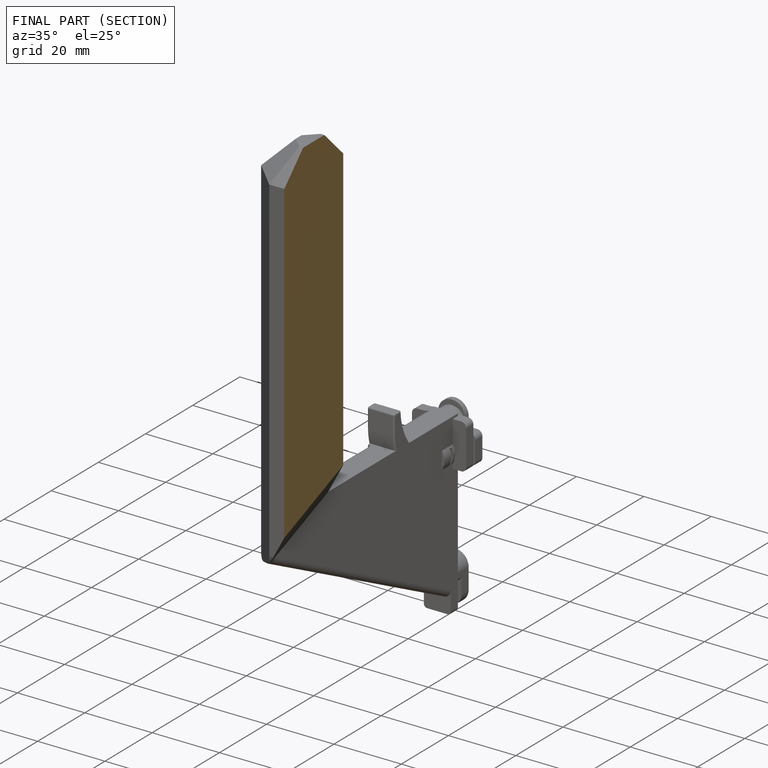
[diagram: finished part — half-section view (interior)]
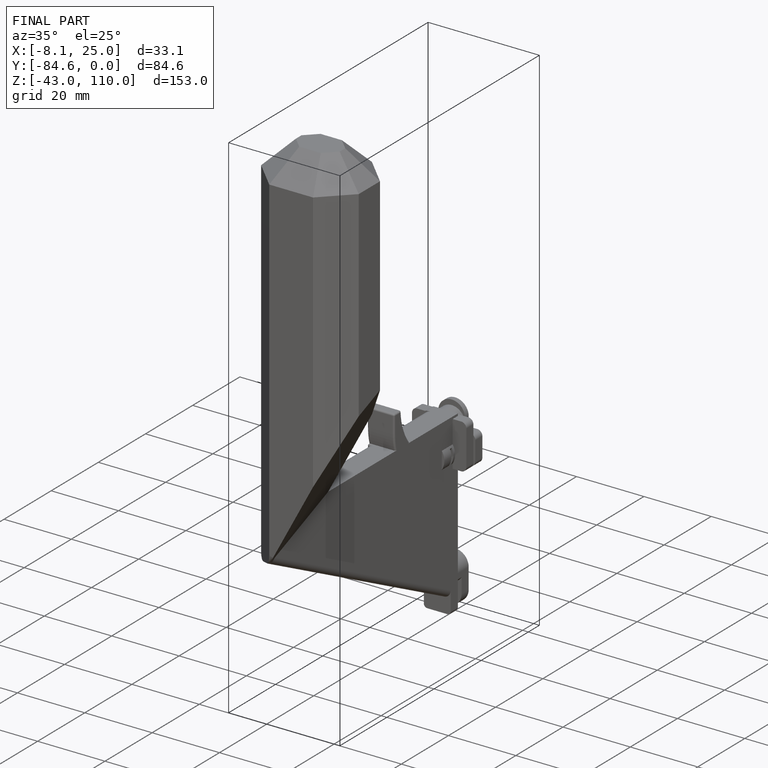
[diagram: finished part — iso view with bounding-box wireframe]
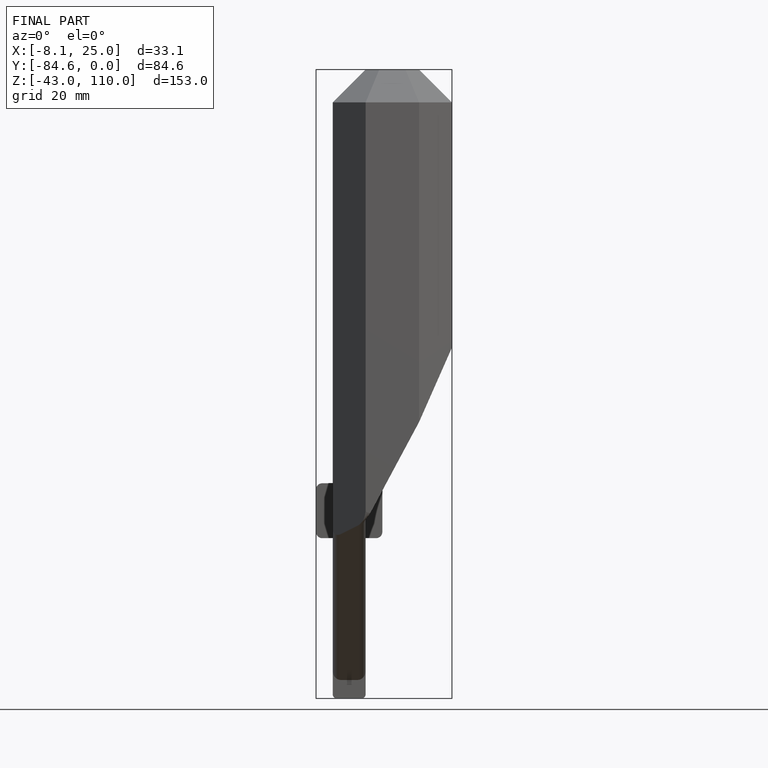
[diagram: finished part — front view with bounding-box wireframe]
